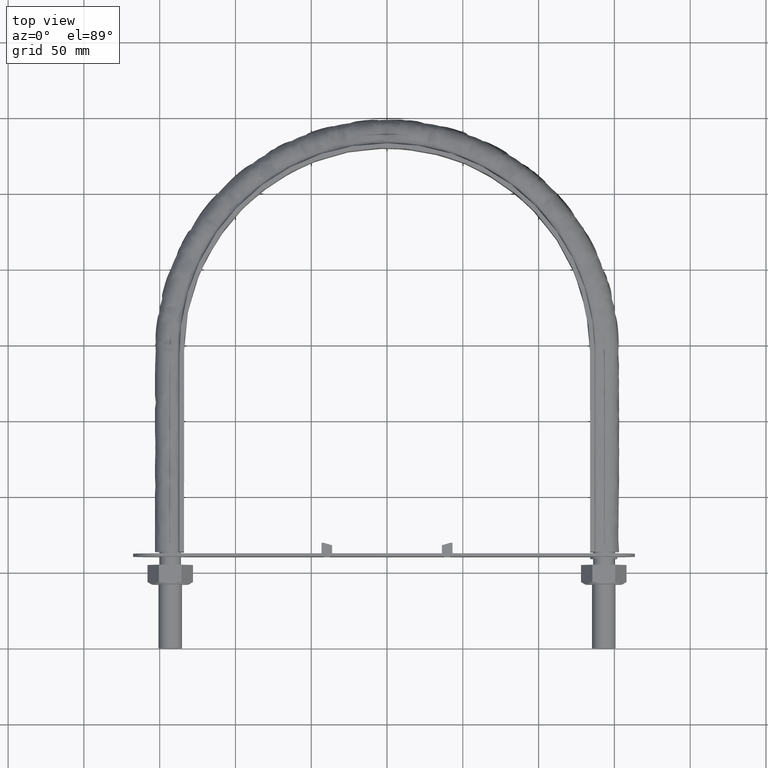
[diagram: clean part render]
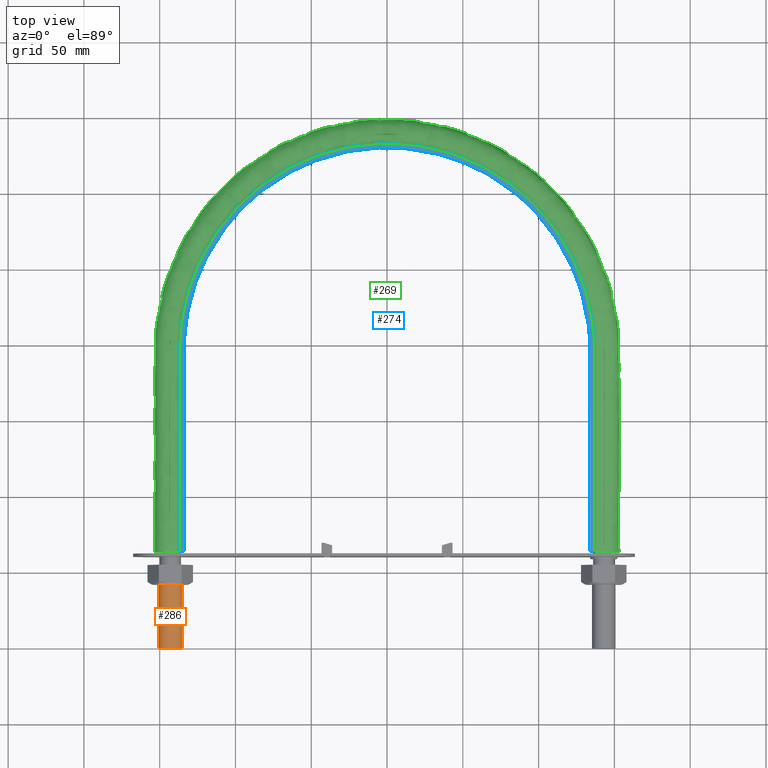
[diagram: same view with three faces highlighted in distinct colors, each labeled with its STEP entity id]
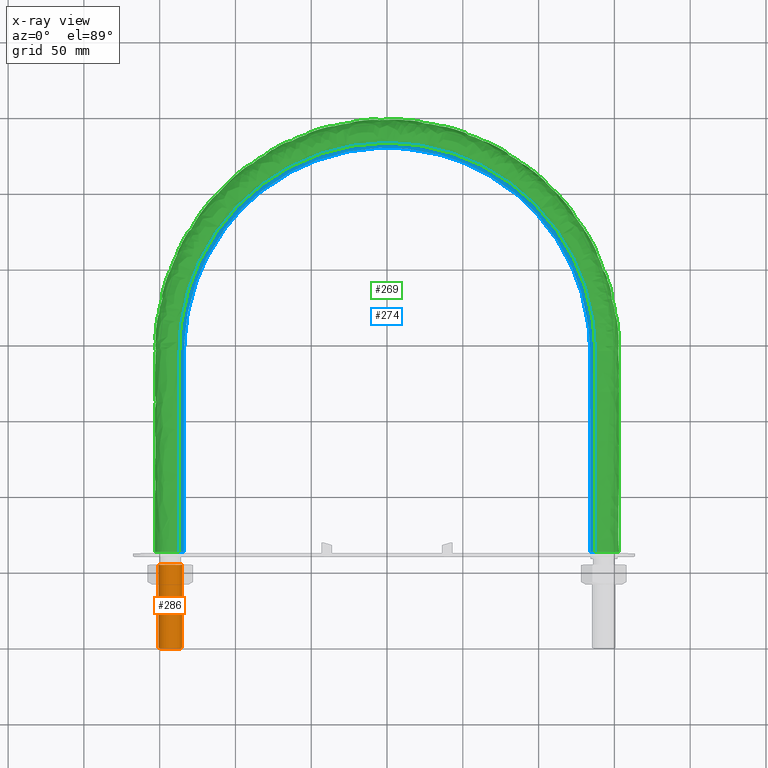
[diagram: x-ray of the same camera — body ghosted, the three highlighted faces saturated]
A machine part, top view with three faces highlighted in distinct colors.
The next image is the same camera in x-ray (body ghosted, the three faces saturated) — at least one of them is partly hidden behind the body in this view.
Their STEP definitions:

[orange] entity #286 — the highlighted cylindrical surface (bore or boss wall) has radius 7.75 mm, axis along (0, 1, -0).
#286 = ADVANCED_FACE( '', ( #407, #408 ), #409, .T. );
#407 = FACE_OUTER_BOUND( '', #1548, .T. );
#408 = FACE_OUTER_BOUND( '', #1549, .T. );
#409 = CYLINDRICAL_SURFACE( '', #1550, 7.75000000000001 );
#1548 = EDGE_LOOP( '', ( #2059 ) );
#1549 = EDGE_LOOP( '', ( #2060 ) );
#1550 = AXIS2_PLACEMENT_3D( '', #2061, #2062, #2063 );
#2059 = ORIENTED_EDGE( '', *, *, #2639, .T. );
#2060 = ORIENTED_EDGE( '', *, *, #2640, .F. );
#2061 = CARTESIAN_POINT( '', ( -143.000000000000, 55.0000000000001, -1.68383373650577E-014 ) );
#2062 = DIRECTION( '', ( 2.44921270764475E-016, 1.00000000000000, -3.06151588455594E-016 ) );
#2063 = DIRECTION( '', ( 1.00000000000000, -2.44921270764476E-016, -5.47382212626882E-048 ) );
#2639 = EDGE_CURVE( '', #2864, #2864, #2865, .T. );
#2640 = EDGE_CURVE( '', #2866, #2866, #2867, .T. );
#2864 = VERTEX_POINT( '', #3678 );
#2865 = CIRCLE( '', #3679, 7.75000000000001 );
#2866 = VERTEX_POINT( '', #3680 );
#2867 = CIRCLE( '', #3681, 7.75000000000001 );
#3678 = CARTESIAN_POINT( '', ( -135.250000000000, 55.0000000000001, -1.68383373650577E-014 ) );
#3679 = AXIS2_PLACEMENT_3D( '', #4207, #4208, #4209 );
#3680 = CARTESIAN_POINT( '', ( -135.250000000000, 7.11248822424931E-014, 0.000000000000000 ) );
#3681 = AXIS2_PLACEMENT_3D( '', #4210, #4211, #4212 );
#4207 = CARTESIAN_POINT( '', ( -143.000000000000, 55.0000000000001, -1.68383373650577E-014 ) );
#4208 = DIRECTION( '', ( -2.44921270764475E-016, -1.00000000000000, 3.06151588455594E-016 ) );
#4209 = DIRECTION( '', ( 1.00000000000000, -2.44921270764476E-016, -5.47382212626882E-048 ) );
#4210 = CARTESIAN_POINT( '', ( -143.000000000000, 7.30230220909178E-014, 4.24221214785834E-047 ) );
#4211 = DIRECTION( '', ( -2.44921270764475E-016, -1.00000000000000, 3.06151588455594E-016 ) );
#4212 = DIRECTION( '', ( 1.00000000000000, -2.44921270764476E-016, -5.47382212626882E-048 ) );

[blue] entity #274 — the highlighted planar face has unit normal (0, 0, 1).
#274 = ADVANCED_FACE( '', ( #379 ), #380, .T. );
#379 = FACE_OUTER_BOUND( '', #1148, .T. );
#380 = PLANE( '', #1149 );
#1148 = EDGE_LOOP( '', ( #1976, #1977, #1978, #1979 ) );
#1149 = AXIS2_PLACEMENT_3D( '', #1980, #1981, #1982 );
#1976 = ORIENTED_EDGE( '', *, *, #2596, .T. );
#1977 = ORIENTED_EDGE( '', *, *, #2599, .T. );
#1978 = ORIENTED_EDGE( '', *, *, #2603, .T. );
#1979 = ORIENTED_EDGE( '', *, *, #2586, .F. );
#1980 = CARTESIAN_POINT( '', ( 200.000000000000, 463.500000000000, 20.0000000000000 ) );
#1981 = DIRECTION( '', ( 0.000000000000000, 0.000000000000000, 1.00000000000000 ) );
#1982 = DIRECTION( '', ( 1.22460635382238E-016, 1.00000000000000, 0.000000000000000 ) );
#2586 = EDGE_CURVE( '', #2779, #2781, #2782, .T. );
#2596 = EDGE_CURVE( '', #2779, #2797, #2799, .T. );
#2599 = EDGE_CURVE( '', #2797, #2802, #2804, .T. );
#2603 = EDGE_CURVE( '', #2802, #2781, #2809, .T. );
#2779 = VERTEX_POINT( '', #3117 );
#2781 = VERTEX_POINT( '', #3120 );
#2782 = B_SPLINE_CURVE_WITH_KNOTS( '', 3, ( #3121, #3122, #3123, #3124, #3125, #3126, #3127, #3128, #3129, #3130, #3131, #3132, #3133, #3134, #3135, #3136, #3137, #3138, #3139, #3140, #3141, #3142, #3143, #3144, #3145, #3146, #3147, #3148, #3149, #3150, #3151, #3152, #3153, #3154, #3155, #3156, #3157, #3158, #3159, #3160, #3161, #3162, #3163, #3164, #3165, #3166, #3167, #3168, #3169, #3170, #3171, #3172, #3173, #3174, #3175, #3176, #3177, #3178, #3179, #3180, #3181, #3182, #3183, #3184, #3185, #3186, #3187, #3188, #3189, #3190, #3191, #3192, #3193, #3194, #3195, #3196, #3197, #3198, #3199, #3200, #3201, #3202, #3203, #3204, #3205, #3206, #3207, #3208, #3209, #3210, #3211, #3212, #3213, #3214, #3215, #3216, #3217, #3218, #3219, #3220, #3221, #3222, #3223, #3224, #3225, #3226, #3227 ), .UNSPECIFIED., .F., .F., ( 4, 1, 2, 2, 2, 2, 2, 2, 2, 2, 2, 2, 2, 2, 2, 2, 2, 2, 2, 2, 2, 2, 2, 2, 2, 2, 2, 2, 2, 2, 2, 2, 2, 2, 2, 1, 2, 2, 2, 2, 2, 2, 2, 2, 2, 2, 2, 2, 2, 2, 2, 2, 2, 1, 4 ), ( 1.38777878078145E-017, 0.0874256844655868, 0.131138526698380, 0.133870579337930, 0.136602631977479, 0.142066737256578, 0.152994947814776, 0.174851368931172, 0.180315474210272, 0.183047526849821, 0.185779579489371, 0.196707790047568, 0.218564211163964, 0.229492421722162, 0.232224474361712, 0.234956527001261, 0.240420632280360, 0.262277053396756, 0.273205263954954, 0.275937316594503, 0.278669369234053, 0.284133474513152, 0.305989895629548, 0.316918106187746, 0.322382211466845, 0.325114264106395, 0.327846316745944, 0.349702737862340, 0.360630948420539, 0.366095053699638, 0.368827106339187, 0.371559158978737, 0.393415580095133, 0.415272001211529, 0.418004053851078, 0.420736106490628, 0.426200211769727, 0.437128422327925, 0.458984843444321, 0.461716896083871, 0.464448948723420, 0.469913054002519, 0.480841264560717, 0.502697685677114, 0.508161790956213, 0.513625896235312, 0.524554106793510, 0.546410527909907, 0.551874633189006, 0.557338738468105, 0.562802843747204, 0.565534896386754, 0.568266949026304, 0.611979791259097, 0.699405475724684 ), .UNSPECIFIED. );
#2797 = VERTEX_POINT( '', #3515 );
#2799 = LINE( '', #3518, #3519 );
#2802 = VERTEX_POINT( '', #3523 );
#2804 = B_SPLINE_CURVE_WITH_KNOTS( '', 3, ( #3526, #3527, #3528, #3529, #3530, #3531, #3532, #3533, #3534, #3535, #3536, #3537, #3538, #3539, #3540, #3541, #3542 ), .UNSPECIFIED., .F., .F., ( 4, 3, 1, 1, 1, 1, 1, 1, 1, 3, 4 ), ( -10.0000000000000, -9.00000000000000, -8.00000000000000, -7.00000000000000, -6.00000000000000, -5.00000000000000, -4.00000000000000, -3.00000000000000, -2.00000000000000, -1.00000000000000, 0.000000000000000 ), .UNSPECIFIED. );
#2809 = LINE( '', #3574, #3575 );
#3117 = CARTESIAN_POINT( '', ( -136.950000000000, 63.5000000000001, 20.0000000000000 ) );
#3120 = CARTESIAN_POINT( '', ( 136.950000000000, 63.5000000000000, 20.0000000000000 ) );
#3121 = CARTESIAN_POINT( '', ( -136.950000000000, 63.5000000000001, 20.0000000000000 ) );
#3122 = CARTESIAN_POINT( '', ( -136.950000000000, 92.6419002480980, 20.0000000000000 ) );
#3123 = CARTESIAN_POINT( '', ( -136.950000000000, 136.354750620245, 20.0000000000000 ) );
#3124 = CARTESIAN_POINT( '', ( -136.950000000000, 180.067600992392, 20.0000000000000 ) );
#3125 = CARTESIAN_POINT( '', ( -136.950000000000, 195.549235499193, 20.0000000000000 ) );
#3126 = CARTESIAN_POINT( '', ( -136.952005766823, 196.459921105959, 20.0000000000000 ) );
#3127 = CARTESIAN_POINT( '', ( -136.934979206279, 198.281279481062, 20.0000000000000 ) );
#3128 = CARTESIAN_POINT( '', ( -136.916553871832, 199.191952619815, 20.0000000000000 ) );
#3129 = CARTESIAN_POINT( '', ( -136.834753701177, 201.923955849787, 20.0000000000000 ) );
#3130 = CARTESIAN_POINT( '', ( -136.743599783762, 203.741272047874, 20.0000000000000 ) );
#3131 = CARTESIAN_POINT( '', ( -136.363495553162, 209.166484778746, 20.0000000000000 ) );
#3132 = CARTESIAN_POINT( '', ( -135.967488703048, 212.753870458487, 20.0000000000000 ) );
#3133 = CARTESIAN_POINT( '', ( -134.367551969831, 223.431038801512, 20.0000000000000 ) );
#3134 = CARTESIAN_POINT( '', ( -132.750553866293, 230.435595074199, 20.0000000000000 ) );
#3135 = CARTESIAN_POINT( '', ( -130.033489035347, 239.047725779318, 20.0000000000000 ) );
#3136 = CARTESIAN_POINT( '', ( -129.454886141075, 240.762891350762, 20.0000000000000 ) );
#3137 = CARTESIAN_POINT( '', ( -128.533317502650, 243.324567410150, 20.0000000000000 ) );
#3138 = CARTESIAN_POINT( '', ( -128.217212893147, 244.176620027555, 20.0000000000000 ) );
#3139 = CARTESIAN_POINT( '', ( -127.566740219217, 245.876957051049, 20.0000000000000 ) );
#3140 = CARTESIAN_POINT( '', ( -127.232398800354, 246.725180838086, 20.0000000000000 ) );
#3141 = CARTESIAN_POINT( '', ( -125.522807242115, 250.937555990544, 20.0000000000000 ) );
#3142 = CARTESIAN_POINT( '', ( -124.027890382198, 254.231015655093, 20.0000000000000 ) );
#3143 = CARTESIAN_POINT( '', ( -119.177772488661, 263.891903517815, 20.0000000000000 ) );
#3144 = CARTESIAN_POINT( '', ( -115.456951462214, 270.039688790403, 20.0000000000000 ) );
#3145 = CARTESIAN_POINT( '', ( -109.152951019669, 278.827169774980, 20.0000000000000 ) );
#3146 = CARTESIAN_POINT( '', ( -106.930050833051, 281.683299996960, 20.0000000000000 ) );
#3147 = CARTESIAN_POINT( '', ( -103.994442146732, 285.159156375520, 20.0000000000000 ) );
#3148 = CARTESIAN_POINT( '', ( -103.399206220779, 285.849830869778, 20.0000000000000 ) );
#3149 = CARTESIAN_POINT( '', ( -102.198265091274, 287.215468669278, 20.0000000000000 ) );
#3150 = CARTESIAN_POINT( '', ( -101.591920700928, 287.891203542521, 20.0000000000000 ) );
#3151 = CARTESIAN_POINT( '', ( -99.7553846231876, 289.897299082132, 20.0000000000000 ) );
#3152 = CARTESIAN_POINT( '', ( -98.5077032633105, 291.206566629289, 20.0000000000000 ) );
#3153 = CARTESIAN_POINT( '', ( -92.1539858602966, 297.613835991371, 20.0000000000000 ) );
#3154 = CARTESIAN_POINT( '', ( -86.7024715106576, 302.295179626361, 20.0000000000000 ) );
#3155 = CARTESIAN_POINT( '', ( -77.9891669345026, 308.670721620165, 20.0000000000000 ) );
#3156 = CARTESIAN_POINT( '', ( -74.9946413234021, 310.687249879651, 20.0000000000000 ) );
#3157 = CARTESIAN_POINT( '', ( -71.1363767592667, 313.069086719335, 20.0000000000000 ) );
#3158 = CARTESIAN_POINT( '', ( -70.3589796436306, 313.538526390098, 20.0000000000000 ) );
#3159 = CARTESIAN_POINT( '', ( -68.7925101038781, 314.463324926288, 20.0000000000000 ) );
#3160 = CARTESIAN_POINT( '', ( -68.0028416365620, 314.918994503192, 20.0000000000000 ) );
#3161 = CARTESIAN_POINT( '', ( -65.6265150792858, 316.258978990775, 20.0000000000000 ) );
#3162 = CARTESIAN_POINT( '', ( -64.0295971988696, 317.118030590872, 20.0000000000000 ) );
#3163 = CARTESIAN_POINT( '', ( -55.9824089667635, 321.244365806941, 20.0000000000000 ) );
#3164 = CARTESIAN_POINT( '', ( -49.3439512001488, 324.003826159950, 20.0000000000000 ) );
#3165 = CARTESIAN_POINT( '', ( -39.0910082444929, 327.346268295591, 20.0000000000000 ) );
#3166 = CARTESIAN_POINT( '', ( -35.6241551653234, 328.327634953127, 20.0000000000000 ) );
#3167 = CARTESIAN_POINT( '', ( -30.3492784457169, 329.598384851550, 20.0000000000000 ) );
#3168 = CARTESIAN_POINT( '', ( -28.5785337099316, 329.988365122305, 20.0000000000000 ) );
#3169 = CARTESIAN_POINT( '', ( -25.9034309357542, 330.522102744638, 20.0000000000000 ) );
#3170 = CARTESIAN_POINT( '', ( -25.0077107435989, 330.691611247169, 20.0000000000000 ) );
#3171 = CARTESIAN_POINT( '', ( -23.2172138820030, 331.012112274078, 20.0000000000000 ) );
#3172 = CARTESIAN_POINT( '', ( -22.3218036874156, 331.163270419116, 20.0000000000000 ) );
#3173 = CARTESIAN_POINT( '', ( -14.2616746941621, 332.442909678169, 20.0000000000000 ) );
#3174 = CARTESIAN_POINT( '', ( -7.08688203430954, 333.005162357812, 20.0000000000000 ) );
#3175 = CARTESIAN_POINT( '', ( 3.69045053045426, 332.997356057590, 20.0000000000000 ) );
#3176 = CARTESIAN_POINT( '', ( 7.28543714269529, 332.851850186393, 20.0000000000000 ) );
#3177 = CARTESIAN_POINT( '', ( 12.6817359396795, 332.418941046074, 20.0000000000000 ) );
#3178 = CARTESIAN_POINT( '', ( 14.4811397915409, 332.238800753868, 20.0000000000000 ) );
#3179 = CARTESIAN_POINT( '', ( 17.1812121944269, 331.914258555030, 20.0000000000000 ) );
#3180 = CARTESIAN_POINT( '', ( 18.0813968219246, 331.797056870436, 20.0000000000000 ) );
#3181 = CARTESIAN_POINT( '', ( 19.8820902819509, 331.544430686408, 20.0000000000000 ) );
#3182 = CARTESIAN_POINT( '', ( 20.7835449490457, 331.408813108140, 20.0000000000000 ) );
#3183 = CARTESIAN_POINT( '', ( 28.8670965883866, 330.111328549363, 20.0000000000000 ) );
#3184 = CARTESIAN_POINT( '', ( 35.8703135521025, 328.406800400230, 20.0000000000000 ) );
#3185 = CARTESIAN_POINT( '', ( 49.5251538415591, 323.933849723642, 20.0000000000000 ) );
#3186 = CARTESIAN_POINT( '', ( 56.1748232267883, 321.159514727640, 20.0000000000000 ) );
#3187 = CARTESIAN_POINT( '', ( 63.4492399728131, 317.413652350477, 20.0000000000000 ) );
#3188 = CARTESIAN_POINT( '', ( 64.2555412528554, 316.988297906809, 20.0000000000000 ) );
#3189 = CARTESIAN_POINT( '', ( 65.8566175141681, 316.123190874314, 20.0000000000000 ) );
#3190 = CARTESIAN_POINT( '', ( 68.2414579243040, 314.803750954358, 20.0000000000000 ) );
#3191 = CARTESIAN_POINT( '', ( 70.5763589403795, 313.419469626308, 20.0000000000000 ) );
#3192 = CARTESIAN_POINT( '', ( 75.1805857318972, 310.565763947974, 20.0000000000000 ) );
#3193 = CARTESIAN_POINT( '', ( 78.1627035340853, 308.549856366448, 20.0000000000000 ) );
#3194 = CARTESIAN_POINT( '', ( 86.8543207620435, 302.171383663364, 20.0000000000000 ) );
#3195 = CARTESIAN_POINT( '', ( 92.3077229888417, 297.476301431762, 20.0000000000000 ) );
#3196 = CARTESIAN_POINT( '', ( 98.0418417248438, 291.673728261723, 20.0000000000000 ) );
#3197 = CARTESIAN_POINT( '', ( 98.6733697505320, 291.021731690660, 20.0000000000000 ) );
#3198 = CARTESIAN_POINT( '', ( 99.9251833237788, 289.703141292676, 20.0000000000000 ) );
#3199 = CARTESIAN_POINT( '', ( 100.546136743139, 289.035752086234, 20.0000000000000 ) );
#3200 = CARTESIAN_POINT( '', ( 102.386046552860, 287.018007311465, 20.0000000000000 ) );
#3201 = CARTESIAN_POINT( '', ( 103.581668710418, 285.652670943035, 20.0000000000000 ) );
#3202 = CARTESIAN_POINT( '', ( 107.077810366198, 281.497593093915, 20.0000000000000 ) );
#3203 = CARTESIAN_POINT( '', ( 109.287409665406, 278.648655660806, 20.0000000000000 ) );
#3204 = CARTESIAN_POINT( '', ( 115.563663674954, 269.872310524424, 20.0000000000000 ) );
#3205 = CARTESIAN_POINT( '', ( 119.278439319531, 263.715802833902, 20.0000000000000 ) );
#3206 = CARTESIAN_POINT( '', ( 123.322162064000, 255.629687512515, 20.0000000000000 ) );
#3207 = CARTESIAN_POINT( '', ( 124.100657851931, 253.992770208298, 20.0000000000000 ) );
#3208 = CARTESIAN_POINT( '', ( 125.595826737252, 250.678684334606, 20.0000000000000 ) );
#3209 = CARTESIAN_POINT( '', ( 126.312684101757, 249.000403133008, 20.0000000000000 ) );
#3210 = CARTESIAN_POINT( '', ( 128.350441665648, 243.950404789000, 20.0000000000000 ) );
#3211 = CARTESIAN_POINT( '', ( 129.565681668818, 240.548771227831, 20.0000000000000 ) );
#3212 = CARTESIAN_POINT( '', ( 132.799201309554, 230.243261059042, 20.0000000000000 ) );
#3213 = CARTESIAN_POINT( '', ( 134.406489655849, 223.239070076659, 20.0000000000000 ) );
#3214 = CARTESIAN_POINT( '', ( 135.730368078419, 214.316580552517, 20.0000000000000 ) );
#3215 = CARTESIAN_POINT( '', ( 135.960596827439, 212.523650463583, 20.0000000000000 ) );
#3216 = CARTESIAN_POINT( '', ( 136.350715609652, 208.920622076923, 20.0000000000000 ) );
#3217 = CARTESIAN_POINT( '', ( 136.510773884774, 207.109390090212, 20.0000000000000 ) );
#3218 = CARTESIAN_POINT( '', ( 136.758613068843, 203.474281669827, 20.0000000000000 ) );
#3219 = CARTESIAN_POINT( '', ( 136.846031799769, 201.656639207714, 20.0000000000000 ) );
#3220 = CARTESIAN_POINT( '', ( 136.922369077726, 198.930043041096, 20.0000000000000 ) );
#3221 = CARTESIAN_POINT( '', ( 136.939052762000, 198.021156467244, 20.0000000000000 ) );
#3222 = CARTESIAN_POINT( '', ( 136.951967908155, 196.203333870081, 20.0000000000000 ) );
#3223 = CARTESIAN_POINT( '', ( 136.950000000000, 195.294402200339, 20.0000000000000 ) );
#3224 = CARTESIAN_POINT( '', ( 136.950000000000, 179.842644700989, 20.0000000000000 ) );
#3225 = CARTESIAN_POINT( '', ( 136.950000000000, 136.214152938118, 20.0000000000000 ) );
#3226 = CARTESIAN_POINT( '', ( 136.950000000000, 92.5856611752474, 20.0000000000000 ) );
#3227 = CARTESIAN_POINT( '', ( 136.950000000000, 63.5000000000000, 20.0000000000000 ) );
#3515 = CARTESIAN_POINT( '', ( -133.950000000000, 63.5000000000001, 20.0000000000000 ) );
#3518 = CARTESIAN_POINT( '', ( -200.000000000000, 63.5000000000001, 20.0000000000000 ) );
#3519 = VECTOR( '', #4145, 1000.00000000000 );
#3523 = CARTESIAN_POINT( '', ( 133.950000000000, 63.5000000000001, 20.0000000000000 ) );
#3526 = CARTESIAN_POINT( '', ( -133.950000000000, 63.5000000000001, 20.0000000000001 ) );
#3527 = CARTESIAN_POINT( '', ( -133.950000000000, 107.683333333333, 20.0000000000001 ) );
#3528 = CARTESIAN_POINT( '', ( -133.950000000000, 151.866666666667, 20.0000000000001 ) );
#3529 = CARTESIAN_POINT( '', ( -133.950000000000, 196.050000000000, 20.0000000000001 ) );
#3530 = CARTESIAN_POINT( '', ( -133.950000000000, 213.566032700257, 20.0000000000001 ) );
#3531 = CARTESIAN_POINT( '', ( -126.975474198415, 248.652216480459, 20.0000000000001 ) );
#3532 = CARTESIAN_POINT( '', ( -97.1828205848687, 293.230867859828, 20.0000000000001 ) );
#3533 = CARTESIAN_POINT( '', ( -52.5949635017385, 323.026032119855, 20.0000000000001 ) );
#3534 = CARTESIAN_POINT( '', ( 9.63501791762652E-014, 333.486983940073, 20.0000000000001 ) );
#3535 = CARTESIAN_POINT( '', ( 52.5949635017385, 323.026032119855, 20.0000000000001 ) );
#3536 = CARTESIAN_POINT( '', ( 97.1828205848688, 293.230867859828, 20.0000000000001 ) );
#3537 = CARTESIAN_POINT( '', ( 126.975474198415, 248.652216480460, 20.0000000000001 ) );
#3538 = CARTESIAN_POINT( '', ( 133.950000000000, 213.566032700257, 20.0000000000001 ) );
#3539 = CARTESIAN_POINT( '', ( 133.950000000000, 196.050000000000, 20.0000000000001 ) );
#3540 = CARTESIAN_POINT( '', ( 133.950000000000, 151.866666666667, 20.0000000000001 ) );
#3541 = CARTESIAN_POINT( '', ( 133.950000000000, 107.683333333333, 20.0000000000001 ) );
#3542 = CARTESIAN_POINT( '', ( 133.950000000000, 63.5000000000000, 20.0000000000001 ) );
#3574 = CARTESIAN_POINT( '', ( -200.000000000000, 63.5000000000001, 20.0000000000000 ) );
#3575 = VECTOR( '', #4149, 1000.00000000000 );
#4145 = DIRECTION( '', ( 1.00000000000000, -1.22460635382238E-016, 0.000000000000000 ) );
#4149 = DIRECTION( '', ( 1.00000000000000, -1.22460635382238E-016, 0.000000000000000 ) );

[green] entity #269 — the highlighted face is a freeform B-spline surface patch.
#269 = ADVANCED_FACE( '', ( #367 ), #368, .F. );
#367 = FACE_OUTER_BOUND( '', #592, .T. );
#368 = B_SPLINE_SURFACE_WITH_KNOTS( '', 3, 3, ( ( #593, #594, #595, #596, #597, #598, #599, #600, #601, #602, #603, #604, #605, #606, #607, #608, #609 ), ( #610, #611, #612, #613, #614, #615, #616, #617, #618, #619, #620, #621, #622, #623, #624, #625, #626 ), ( #627, #628, #629, #630, #631, #632, #633, #634, #635, #636, #637, #638, #639, #640, #641, #642, #643 ), ( #644, #645, #646, #647, #648, #649, #650, #651, #652, #653, #654, #655, #656, #657, #658, #659, #660 ), ( #661, #662, #663, #664, #665, #666, #667, #668, #669, #670, #671, #672, #673, #674, #675, #676, #677 ), ( #678, #679, #680, #681, #682, #683, #684, #685, #686, #687, #688, #689, #690, #691, #692, #693, #694 ), ( #695, #696, #697, #698, #699, #700, #701, #702, #703, #704, #705, #706, #707, #708, #709, #710, #711 ), ( #712, #713, #714, #715, #716, #717, #718, #719, #720, #721, #722, #723, #724, #725, #726, #727, #728 ), ( #729, #730, #731, #732, #733, #734, #735, #736, #737, #738, #739, #740, #741, #742, #743, #744, #745 ), ( #746, #747, #748, #749, #750, #751, #752, #753, #754, #755, #756, #757, #758, #759, #760, #761, #762 ), ( #763, #764, #765, #766, #767, #768, #769, #770, #771, #772, #773, #774, #775, #776, #777, #778, #779 ), ( #780, #781, #782, #783, #784, #785, #786, #787, #788, #789, #790, #791, #792, #793, #794, #795, #796 ), ( #797, #798, #799, #800, #801, #802, #803, #804, #805, #806, #807, #808, #809, #810, #811, #812, #813 ), ( #814, #815, #816, #817, #818, #819, #820, #821, #822, #823, #824, #825, #826, #827, #828, #829, #830 ), ( #831, #832, #833, #834, #835, #836, #837, #838, #839, #840, #841, #842, #843, #844, #845, #846, #847 ), ( #848, #849, #850, #851, #852, #853, #854, #855, #856, #857, #858, #859, #860, #861, #862, #863, #864 ), ( #865, #866, #867, #868, #869, #870, #871, #872, #873, #874, #875, #876, #877, #878, #879, #880, #881 ), ( #882, #883, #884, #885, #886, #887, #888, #889, #890, #891, #892, #893, #894, #895, #896, #897, #898 ), ( #899, #900, #901, #902, #903, #904, #905, #906, #907, #908, #909, #910, #911, #912, #913, #914, #915 ), ( #916, #917, #918, #919, #920, #921, #922, #923, #924, #925, #926, #927, #928, #929, #930, #931, #932 ), ( #933, #934, #935, #936, #937, #938, #939, #940, #941, #942, #943, #944, #945, #946, #947, #948, #949 ), ( #950, #951, #952, #953, #954, #955, #956, #957, #958, #959, #960, #961, #962, #963, #964, #965, #966 ), ( #967, #968, #969, #970, #971, #972, #973, #974, #975, #976, #977, #978, #979, #980, #981, #982, #983 ), ( #984, #985, #986, #987, #988, #989, #990, #991, #992, #993, #994, #995, #996, #997, #998, #999, #1000 ), ( #1001, #1002, #1003, #1004, #1005, #1006, #1007, #1008, #1009, #1010, #1011, #1012, #1013, #1014, #1015, #1016, #1017 ), ( #1018, #1019, #1020, #1021, #1022, #1023, #1024, #1025, #1026, #1027, #1028, #1029, #1030, #1031, #1032, #1033, #1034 ), ( #1035, #1036, #1037, #1038, #1039, #1040, #1041, #1042, #1043, #1044, #1045, #1046, #1047, #1048, #1049, #1050, #1051 ), ( #1052, #1053, #1054, #1055, #1056, #1057, #1058, #1059, #1060, #1061, #1062, #1063, #1064, #1065, #1066, #1067, #1068 ), ( #1069, #1070, #1071, #1072, #1073, #1074, #1075, #1076, #1077, #1078, #1079, #1080, #1081, #1082, #1083, #1084, #1085 ), ( #1086, #1087, #1088, #1089, #1090, #1091, #1092, #1093, #1094, #1095, #1096, #1097, #1098, #1099, #1100, #1101, #1102 ), ( #1103, #1104, #1105, #1106, #1107, #1108, #1109, #1110, #1111, #1112, #1113, #1114, #1115, #1116, #1117, #1118, #1119 ), ( #1120, #1121, #1122, #1123, #1124, #1125, #1126, #1127, #1128, #1129, #1130, #1131, #1132, #1133, #1134, #1135, #1136 ) ), .UNSPECIFIED., .F., .F., .F., ( 4, 3, 1, 1, 1, 3, 3, 1, 1, 1, 1, 3, 3, 1, 1, 1, 3, 4 ), ( 4, 3, 1, 1, 1, 1, 1, 1, 1, 3, 4 ), ( 0.100000000000000, 0.150000000000000, 0.200000000000000, 0.250000000000000, 0.300000000000000, 0.350000000000000, 0.400000000000000, 0.450000000000000, 0.500000000000000, 0.550000000000000, 0.600000000000000, 0.650000000000000, 0.700000000000000, 0.750000000000000, 0.800000000000000, 0.850000000000000, 0.900000000000000, 0.950000000000000 ), ( 0.000000000000000, 1.00000000000000, 2.00000000000000, 3.00000000000000, 4.00000000000000, 5.00000000000000, 6.00000000000000, 7.00000000000000, 8.00000000000000, 9.00000000000000, 10.0000000000000 ), .UNSPECIFIED. );
#592 = EDGE_LOOP( '', ( #1923, #1924, #1925, #1926 ) );
#593 = CARTESIAN_POINT( '', ( 136.950000000000, 63.5000000000000, -20.0000000000000 ) );
#594 = CARTESIAN_POINT( '', ( 136.950000000000, 107.683333333333, -20.0000000000000 ) );
#595 = CARTESIAN_POINT( '', ( 136.950000000000, 151.866666666667, -20.0000000000000 ) );
#596 = CARTESIAN_POINT( '', ( 136.950000000000, 196.050000000000, -20.0000000000000 ) );
#597 = CARTESIAN_POINT( '', ( 136.950000000000, 213.963857435017, -20.0000000000000 ) );
#598 = CARTESIAN_POINT( '', ( 129.819269813161, 249.827750890366, -20.0000000000000 ) );
#599 = CARTESIAN_POINT( '', ( 99.3593675184605, 295.408062105588, -20.0000000000001 ) );
#600 = CARTESIAN_POINT( '', ( 53.7729022139835, 325.869642788268, -20.0000000000000 ) );
#601 = CARTESIAN_POINT( '', ( 1.19278542038567E-013, 336.565178605866, -20.0000000000000 ) );
#602 = CARTESIAN_POINT( '', ( -53.7729022139834, 325.869642788267, -20.0000000000000 ) );
#603 = CARTESIAN_POINT( '', ( -99.3593675184604, 295.408062105588, -20.0000000000000 ) );
#604 = CARTESIAN_POINT( '', ( -129.819269813161, 249.827750890366, -20.0000000000000 ) );
#605 = CARTESIAN_POINT( '', ( -136.950000000000, 213.963857435017, -20.0000000000000 ) );
#606 = CARTESIAN_POINT( '', ( -136.950000000000, 196.050000000000, -20.0000000000000 ) );
#607 = CARTESIAN_POINT( '', ( -136.950000000000, 151.866666666667, -20.0000000000000 ) );
#608 = CARTESIAN_POINT( '', ( -136.950000000000, 107.683333333333, -20.0000000000000 ) );
#609 = CARTESIAN_POINT( '', ( -136.950000000000, 63.5000000000001, -20.0000000000000 ) );
#610 = CARTESIAN_POINT( '', ( 136.950000000000, 63.5000000000000, -17.3666666666667 ) );
#611 = CARTESIAN_POINT( '', ( 136.950000000000, 107.683333333333, -17.3666666666667 ) );
#612 = CARTESIAN_POINT( '', ( 136.950000000000, 151.866666666667, -17.3666666666667 ) );
#613 = CARTESIAN_POINT( '', ( 136.950000000000, 196.050000000000, -17.3666666666667 ) );
#614 = CARTESIAN_POINT( '', ( 136.950000000000, 213.963857435017, -17.3666666666667 ) );
#615 = CARTESIAN_POINT( '', ( 129.819269813161, 249.827750890366, -17.3666666666667 ) );
#616 = CARTESIAN_POINT( '', ( 99.3593675184605, 295.408062105588, -17.3666666666667 ) );
#617 = CARTESIAN_POINT( '', ( 53.7729022139835, 325.869642788268, -17.3666666666667 ) );
#618 = CARTESIAN_POINT( '', ( 1.10604924658683E-013, 336.565178605866, -17.3666666666667 ) );
#619 = CARTESIAN_POINT( '', ( -53.7729022139834, 325.869642788267, -17.3666666666667 ) );
#620 = CARTESIAN_POINT( '', ( -99.3593675184604, 295.408062105588, -17.3666666666667 ) );
#621 = CARTESIAN_POINT( '', ( -129.819269813161, 249.827750890366, -17.3666666666667 ) );
#622 = CARTESIAN_POINT( '', ( -136.950000000000, 213.963857435017, -17.3666666666667 ) );
#623 = CARTESIAN_POINT( '', ( -136.950000000000, 196.050000000000, -17.3666666666667 ) );
#624 = CARTESIAN_POINT( '', ( -136.950000000000, 151.866666666667, -17.3666666666667 ) );
#625 = CARTESIAN_POINT( '', ( -136.950000000000, 107.683333333333, -17.3666666666667 ) );
#626 = CARTESIAN_POINT( '', ( -136.950000000000, 63.5000000000001, -17.3666666666667 ) );
#627 = CARTESIAN_POINT( '', ( 136.950000000000, 63.5000000000000, -14.7333333333333 ) );
#628 = CARTESIAN_POINT( '', ( 136.950000000000, 107.683333333333, -14.7333333333333 ) );
#629 = CARTESIAN_POINT( '', ( 136.950000000000, 151.866666666667, -14.7333333333333 ) );
#630 = CARTESIAN_POINT( '', ( 136.950000000000, 196.050000000000, -14.7333333333333 ) );
#631 = CARTESIAN_POINT( '', ( 136.950000000000, 213.963857435017, -14.7333333333333 ) );
#632 = CARTESIAN_POINT( '', ( 129.819269813161, 249.827750890366, -14.7333333333333 ) );
#633 = CARTESIAN_POINT( '', ( 99.3593675184605, 295.408062105588, -14.7333333333334 ) );
#634 = CARTESIAN_POINT( '', ( 53.7729022139835, 325.869642788268, -14.7333333333333 ) );
#635 = CARTESIAN_POINT( '', ( 1.01931307278799E-013, 336.565178605866, -14.7333333333333 ) );
#636 = CARTESIAN_POINT( '', ( -53.7729022139834, 325.869642788267, -14.7333333333333 ) );
#637 = CARTESIAN_POINT( '', ( -99.3593675184604, 295.408062105588, -14.7333333333333 ) );
#638 = CARTESIAN_POINT( '', ( -129.819269813161, 249.827750890366, -14.7333333333333 ) );
#639 = CARTESIAN_POINT( '', ( -136.950000000000, 213.963857435017, -14.7333333333333 ) );
#640 = CARTESIAN_POINT( '', ( -136.950000000000, 196.050000000000, -14.7333333333333 ) );
#641 = CARTESIAN_POINT( '', ( -136.950000000000, 151.866666666667, -14.7333333333333 ) );
#642 = CARTESIAN_POINT( '', ( -136.950000000000, 107.683333333333, -14.7333333333333 ) );
#643 = CARTESIAN_POINT( '', ( -136.950000000000, 63.5000000000001, -14.7333333333333 ) );
#644 = CARTESIAN_POINT( '', ( 136.950000000000, 63.5000000000000, -12.1000000000000 ) );
#645 = CARTESIAN_POINT( '', ( 136.950000000000, 107.683333333333, -12.1000000000000 ) );
#646 = CARTESIAN_POINT( '', ( 136.950000000000, 151.866666666667, -12.1000000000000 ) );
#647 = CARTESIAN_POINT( '', ( 136.950000000000, 196.050000000000, -12.1000000000000 ) );
#648 = CARTESIAN_POINT( '', ( 136.950000000000, 213.963857435017, -12.1000000000000 ) );
#649 = CARTESIAN_POINT( '', ( 129.819269813161, 249.827750890366, -12.1000000000000 ) );
#650 = CARTESIAN_POINT( '', ( 99.3593675184605, 295.408062105588, -12.1000000000000 ) );
#651 = CARTESIAN_POINT( '', ( 53.7729022139835, 325.869642788268, -12.1000000000000 ) );
#652 = CARTESIAN_POINT( '', ( 9.15229664229381E-014, 336.565178605866, -12.1000000000000 ) );
#653 = CARTESIAN_POINT( '', ( -53.7729022139834, 325.869642788267, -12.1000000000000 ) );
#654 = CARTESIAN_POINT( '', ( -99.3593675184604, 295.408062105588, -12.1000000000000 ) );
#655 = CARTESIAN_POINT( '', ( -129.819269813161, 249.827750890366, -12.1000000000000 ) );
#656 = CARTESIAN_POINT( '', ( -136.950000000000, 213.963857435017, -12.1000000000000 ) );
#657 = CARTESIAN_POINT( '', ( -136.950000000000, 196.050000000000, -12.1000000000000 ) );
#658 = CARTESIAN_POINT( '', ( -136.950000000000, 151.866666666667, -12.1000000000000 ) );
#659 = CARTESIAN_POINT( '', ( -136.950000000000, 107.683333333333, -12.1000000000000 ) );
#660 = CARTESIAN_POINT( '', ( -136.950000000000, 63.5000000000001, -12.1000000000000 ) );
#661 = CARTESIAN_POINT( '', ( 136.950000000000, 63.5000000000000, -11.8382358417233 ) );
#662 = CARTESIAN_POINT( '', ( 136.950000000000, 107.683333333333, -11.8382358417233 ) );
#663 = CARTESIAN_POINT( '', ( 136.950000000000, 151.866666666667, -11.8382358417233 ) );
#664 = CARTESIAN_POINT( '', ( 136.950000000000, 196.050000000000, -11.8382358417233 ) );
#665 = CARTESIAN_POINT( '', ( 136.950000000000, 213.963857435017, -11.8382358417233 ) );
#666 = CARTESIAN_POINT( '', ( 129.819269813161, 249.827750890366, -11.8382358417233 ) );
#667 = CARTESIAN_POINT( '', ( 99.3593675184605, 295.408062105588, -11.8382358417233 ) );
#668 = CARTESIAN_POINT( '', ( 53.7729022139835, 325.869642788268, -11.8382358417233 ) );
#669 = CARTESIAN_POINT( '', ( 8.97882429469613E-014, 336.565178605866, -11.8382358417233 ) );
#670 = CARTESIAN_POINT( '', ( -53.7729022139834, 325.869642788267, -11.8382358417233 ) );
#671 = CARTESIAN_POINT( '', ( -99.3593675184604, 295.408062105588, -11.8382358417233 ) );
#672 = CARTESIAN_POINT( '', ( -129.819269813161, 249.827750890366, -11.8382358417233 ) );
#673 = CARTESIAN_POINT( '', ( -136.950000000000, 213.963857435017, -11.8382358417233 ) );
#674 = CARTESIAN_POINT( '', ( -136.950000000000, 196.050000000000, -11.8382358417233 ) );
#675 = CARTESIAN_POINT( '', ( -136.950000000000, 151.866666666667, -11.8382358417233 ) );
#676 = CARTESIAN_POINT( '', ( -136.950000000000, 107.683333333333, -11.8382358417233 ) );
#677 = CARTESIAN_POINT( '', ( -136.950000000000, 63.5000000000001, -11.8382358417233 ) );
#678 = CARTESIAN_POINT( '', ( 137.054136256836, 63.5000000000000, -11.3147075251700 ) );
#679 = CARTESIAN_POINT( '', ( 137.054136256836, 107.683333333333, -11.3147075251700 ) );
#680 = CARTESIAN_POINT( '', ( 137.054136256836, 151.866666666667, -11.3147075251700 ) );
#681 = CARTESIAN_POINT( '', ( 137.054136256836, 196.050000000000, -11.3147075251700 ) );
#682 = CARTESIAN_POINT( '', ( 137.054136256836, 213.977666761268, -11.3147075251700 ) );
#683 = CARTESIAN_POINT( '', ( 129.917983890003, 249.868556141442, -11.3147075251700 ) );
#684 = CARTESIAN_POINT( '', ( 99.4349200019578, 295.483637058641, -11.3147075251700 ) );
#685 = CARTESIAN_POINT( '', ( 53.8137909234086, 325.968350445237, -11.3147075251700 ) );
#686 = CARTESIAN_POINT( '', ( 9.84749453139183E-014, 336.672029162636, -11.3147075251700 ) );
#687 = CARTESIAN_POINT( '', ( -53.8137909234086, 325.968350445236, -11.3147075251700 ) );
#688 = CARTESIAN_POINT( '', ( -99.4349200019577, 295.483637058641, -11.3147075251700 ) );
#689 = CARTESIAN_POINT( '', ( -129.917983890003, 249.868556141442, -11.3147075251700 ) );
#690 = CARTESIAN_POINT( '', ( -137.054136256836, 213.977666761268, -11.3147075251700 ) );
#691 = CARTESIAN_POINT( '', ( -137.054136256836, 196.050000000000, -11.3147075251700 ) );
#692 = CARTESIAN_POINT( '', ( -137.054136256836, 151.866666666667, -11.3147075251700 ) );
#693 = CARTESIAN_POINT( '', ( -137.054136256836, 107.683333333333, -11.3147075251700 ) );
#694 = CARTESIAN_POINT( '', ( -137.054136256836, 63.5000000000001, -11.3147075251700 ) );
#695 = CARTESIAN_POINT( '', ( 137.498968710939, 63.5000000000000, -10.6489687109389 ) );
#696 = CARTESIAN_POINT( '', ( 137.498968710939, 107.683333333333, -10.6489687109389 ) );
#697 = CARTESIAN_POINT( '', ( 137.498968710939, 151.866666666667, -10.6489687109389 ) );
#698 = CARTESIAN_POINT( '', ( 137.498968710939, 196.050000000000, -10.6489687109389 ) );
#699 = CARTESIAN_POINT( '', ( 137.498968710939, 214.036655212290, -10.6489687109389 ) );
#700 = CARTESIAN_POINT( '', ( 130.339654750761, 250.042861426923, -10.6489687109389 ) );
#701 = CARTESIAN_POINT( '', ( 99.7576529066044, 295.806465945108, -10.6489687109389 ) );
#702 = CARTESIAN_POINT( '', ( 53.9884527127922, 326.389993882618, -10.6489687109389 ) );
#703 = CARTESIAN_POINT( '', ( 9.85308396497472E-014, 337.128456125100, -10.6489687109389 ) );
#704 = CARTESIAN_POINT( '', ( -53.9884527127922, 326.389993882617, -10.6489687109389 ) );
#705 = CARTESIAN_POINT( '', ( -99.7576529066043, 295.806465945108, -10.6489687109389 ) );
#706 = CARTESIAN_POINT( '', ( -130.339654750761, 250.042861426923, -10.6489687109389 ) );
#707 = CARTESIAN_POINT( '', ( -137.498968710939, 214.036655212290, -10.6489687109389 ) );
#708 = CARTESIAN_POINT( '', ( -137.498968710939, 196.050000000000, -10.6489687109389 ) );
#709 = CARTESIAN_POINT( '', ( -137.498968710939, 151.866666666667, -10.6489687109389 ) );
#710 = CARTESIAN_POINT( '', ( -137.498968710939, 107.683333333333, -10.6489687109389 ) );
#711 = CARTESIAN_POINT( '', ( -137.498968710939, 63.5000000000001, -10.6489687109389 ) );
#712 = CARTESIAN_POINT( '', ( 138.164707525170, 63.5000000000000, -10.2041362568359 ) );
#713 = CARTESIAN_POINT( '', ( 138.164707525170, 107.683333333333, -10.2041362568359 ) );
#714 = CARTESIAN_POINT( '', ( 138.164707525170, 151.866666666667, -10.2041362568359 ) );
#715 = CARTESIAN_POINT( '', ( 138.164707525170, 196.050000000000, -10.2041362568359 ) );
#716 = CARTESIAN_POINT( '', ( 138.164707525170, 214.124937668020, -10.2041362568359 ) );
#717 = CARTESIAN_POINT( '', ( 130.970729790920, 250.303727721636, -10.2041362568359 ) );
#718 = CARTESIAN_POINT( '', ( 100.240656831500, 296.289613516949, -10.2041362568359 ) );
#719 = CARTESIAN_POINT( '', ( 54.2498525533012, 327.021027880792, -10.2041362568359 ) );
#720 = CARTESIAN_POINT( '', ( 9.34103210069187E-014, 337.811547347359, -10.2041362568359 ) );
#721 = CARTESIAN_POINT( '', ( -54.2498525533011, 327.021027880792, -10.2041362568359 ) );
#722 = CARTESIAN_POINT( '', ( -100.240656831500, 296.289613516949, -10.2041362568359 ) );
#723 = CARTESIAN_POINT( '', ( -130.970729790920, 250.303727721636, -10.2041362568359 ) );
#724 = CARTESIAN_POINT( '', ( -138.164707525170, 214.124937668020, -10.2041362568359 ) );
#725 = CARTESIAN_POINT( '', ( -138.164707525170, 196.050000000000, -10.2041362568359 ) );
#726 = CARTESIAN_POINT( '', ( -138.164707525170, 151.866666666667, -10.2041362568359 ) );
#727 = CARTESIAN_POINT( '', ( -138.164707525170, 107.683333333333, -10.2041362568359 ) );
#728 = CARTESIAN_POINT( '', ( -138.164707525170, 63.5000000000001, -10.2041362568359 ) );
#729 = CARTESIAN_POINT( '', ( 138.688235841723, 63.5000000000000, -10.1000000000000 ) );
#730 = CARTESIAN_POINT( '', ( 138.688235841723, 107.683333333333, -10.1000000000000 ) );
#731 = CARTESIAN_POINT( '', ( 138.688235841723, 151.866666666667, -10.1000000000000 ) );
#732 = CARTESIAN_POINT( '', ( 138.688235841723, 196.050000000000, -10.1000000000000 ) );
#733 = CARTESIAN_POINT( '', ( 138.688235841723, 214.194361839244, -10.1000000000000 ) );
#734 = CARTESIAN_POINT( '', ( 131.466998967857, 250.508869571859, -10.1000000000000 ) );
#735 = CARTESIAN_POINT( '', ( 100.620484815515, 296.669554463046, -10.1000000000000 ) );
#736 = CARTESIAN_POINT( '', ( 54.4554139769760, 327.517264782848, -10.1000000000000 ) );
#737 = CARTESIAN_POINT( '', ( 9.52108271551611E-014, 338.348721371161, -10.1000000000000 ) );
#738 = CARTESIAN_POINT( '', ( -54.4554139769760, 327.517264782848, -10.1000000000000 ) );
#739 = CARTESIAN_POINT( '', ( -100.620484815514, 296.669554463046, -10.1000000000000 ) );
#740 = CARTESIAN_POINT( '', ( -131.466998967857, 250.508869571859, -10.1000000000000 ) );
#741 = CARTESIAN_POINT( '', ( -138.688235841723, 214.194361839244, -10.1000000000000 ) );
#742 = CARTESIAN_POINT( '', ( -138.688235841723, 196.050000000000, -10.1000000000000 ) );
#743 = CARTESIAN_POINT( '', ( -138.688235841723, 151.866666666667, -10.1000000000000 ) );
#744 = CARTESIAN_POINT( '', ( -138.688235841723, 107.683333333333, -10.1000000000000 ) );
#745 = CARTESIAN_POINT( '', ( -138.688235841723, 63.5000000000001, -10.1000000000000 ) );
#746 = CARTESIAN_POINT( '', ( 138.950000000000, 63.5000000000000, -10.1000000000000 ) );
#747 = CARTESIAN_POINT( '', ( 138.950000000000, 107.683333333333, -10.1000000000000 ) );
#748 = CARTESIAN_POINT( '', ( 138.950000000000, 151.866666666667, -10.1000000000000 ) );
#749 = CARTESIAN_POINT( '', ( 138.950000000000, 196.050000000000, -10.1000000000000 ) );
#750 = CARTESIAN_POINT( '', ( 138.950000000000, 214.229073924856, -10.1000000000000 ) );
#751 = CARTESIAN_POINT( '', ( 131.715133556325, 250.611440496970, -10.1000000000000 ) );
#752 = CARTESIAN_POINT( '', ( 100.810398807522, 296.859524936095, -10.1000000000000 ) );
#753 = CARTESIAN_POINT( '', ( 54.5581946888135, 327.765383233876, -10.1000000000000 ) );
#754 = CARTESIAN_POINT( '', ( 9.00395480633635E-014, 338.617308383062, -10.1000000000000 ) );
#755 = CARTESIAN_POINT( '', ( -54.5581946888134, 327.765383233876, -10.1000000000000 ) );
#756 = CARTESIAN_POINT( '', ( -100.810398807522, 296.859524936095, -10.1000000000000 ) );
#757 = CARTESIAN_POINT( '', ( -131.715133556325, 250.611440496970, -10.1000000000000 ) );
#758 = CARTESIAN_POINT( '', ( -138.950000000000, 214.229073924856, -10.1000000000000 ) );
#759 = CARTESIAN_POINT( '', ( -138.950000000000, 196.050000000000, -10.1000000000000 ) );
#760 = CARTESIAN_POINT( '', ( -138.950000000000, 151.866666666667, -10.1000000000000 ) );
#761 = CARTESIAN_POINT( '', ( -138.950000000000, 107.683333333333, -10.1000000000000 ) );
#762 = CARTESIAN_POINT( '', ( -138.950000000000, 63.5000000000001, -10.1000000000000 ) );
#763 = CARTESIAN_POINT( '', ( 140.300000000000, 63.5000000000000, -10.1000000000000 ) );
#764 = CARTESIAN_POINT( '', ( 140.300000000000, 107.683333333333, -10.1000000000000 ) );
#765 = CARTESIAN_POINT( '', ( 140.300000000000, 151.866666666667, -10.1000000000000 ) );
#766 = CARTESIAN_POINT( '', ( 140.300000000000, 196.050000000000, -10.1000000000000 ) );
#767 = CARTESIAN_POINT( '', ( 140.300000000000, 214.408095055498, -10.1000000000000 ) );
#768 = CARTESIAN_POINT( '', ( 132.994841582961, 251.140430981428, -10.1000000000000 ) );
#769 = CARTESIAN_POINT( '', ( 101.789844927638, 297.839262346687, -10.1000000000000 ) );
#770 = CARTESIAN_POINT( '', ( 55.0882671093237, 329.045008034661, -10.1000000000000 ) );
#771 = CARTESIAN_POINT( '', ( 1.17964754632564E-013, 340.002495982669, -10.1000000000000 ) );
#772 = CARTESIAN_POINT( '', ( -55.0882671093237, 329.045008034661, -10.1000000000000 ) );
#773 = CARTESIAN_POINT( '', ( -101.789844927638, 297.839262346686, -10.1000000000000 ) );
#774 = CARTESIAN_POINT( '', ( -132.994841582961, 251.140430981428, -10.1000000000000 ) );
#775 = CARTESIAN_POINT( '', ( -140.300000000000, 214.408095055498, -10.1000000000000 ) );
#776 = CARTESIAN_POINT( '', ( -140.300000000000, 196.050000000000, -10.1000000000000 ) );
#777 = CARTESIAN_POINT( '', ( -140.300000000000, 151.866666666667, -10.1000000000000 ) );
#778 = CARTESIAN_POINT( '', ( -140.300000000000, 107.683333333333, -10.1000000000000 ) );
#779 = CARTESIAN_POINT( '', ( -140.300000000000, 63.5000000000001, -10.1000000000000 ) );
#780 = CARTESIAN_POINT( '', ( 141.650000000000, 63.5000000000000, -10.1000000000000 ) );
#781 = CARTESIAN_POINT( '', ( 141.650000000000, 107.683333333333, -10.1000000000000 ) );
#782 = CARTESIAN_POINT( '', ( 141.650000000000, 151.866666666667, -10.1000000000000 ) );
#783 = CARTESIAN_POINT( '', ( 141.650000000000, 196.050000000000, -10.1000000000000 ) );
#784 = CARTESIAN_POINT( '', ( 141.650000000000, 214.587116186140, -10.1000000000000 ) );
#785 = CARTESIAN_POINT( '', ( 134.274549609597, 251.669421465886, -10.1000000000000 ) );
#786 = CARTESIAN_POINT( '', ( 102.769291047754, 298.818999757278, -10.1000000000000 ) );
#787 = CARTESIAN_POINT( '', ( 55.6183395298340, 330.324632835447, -10.1000000000000 ) );
#788 = CARTESIAN_POINT( '', ( 1.14664938634182E-013, 341.387683582277, -10.1000000000000 ) );
#789 = CARTESIAN_POINT( '', ( -55.6183395298339, 330.324632835447, -10.1000000000000 ) );
#790 = CARTESIAN_POINT( '', ( -102.769291047754, 298.818999757278, -10.1000000000000 ) );
#791 = CARTESIAN_POINT( '', ( -134.274549609597, 251.669421465886, -10.1000000000000 ) );
#792 = CARTESIAN_POINT( '', ( -141.650000000000, 214.587116186140, -10.1000000000000 ) );
#793 = CARTESIAN_POINT( '', ( -141.650000000000, 196.050000000000, -10.1000000000000 ) );
#794 = CARTESIAN_POINT( '', ( -141.650000000000, 151.866666666667, -10.1000000000000 ) );
#795 = CARTESIAN_POINT( '', ( -141.650000000000, 107.683333333333, -10.1000000000000 ) );
#796 = CARTESIAN_POINT( '', ( -141.650000000000, 63.5000000000001, -10.1000000000000 ) );
#797 = CARTESIAN_POINT( '', ( 143.000000000000, 63.5000000000000, -10.1000000000000 ) );
#798 = CARTESIAN_POINT( '', ( 143.000000000000, 107.683333333333, -10.1000000000000 ) );
#799 = CARTESIAN_POINT( '', ( 143.000000000000, 151.866666666667, -10.1000000000000 ) );
#800 = CARTESIAN_POINT( '', ( 143.000000000000, 196.050000000000, -10.1000000000000 ) );
#801 = CARTESIAN_POINT( '', ( 143.000000000000, 214.766137316781, -10.1000000000000 ) );
#802 = CARTESIAN_POINT( '', ( 135.554257636233, 252.198411950344, -10.1000000000000 ) );
#803 = CARTESIAN_POINT( '', ( 103.748737167870, 299.798737167870, -10.1000000000000 ) );
#804 = CARTESIAN_POINT( '', ( 56.1484119503442, 331.604257636233, -10.1000000000000 ) );
#805 = CARTESIAN_POINT( '', ( 1.11365122635800E-013, 342.772871181884, -10.1000000000000 ) );
#806 = CARTESIAN_POINT( '', ( -56.1484119503442, 331.604257636232, -10.1000000000000 ) );
#807 = CARTESIAN_POINT( '', ( -103.748737167870, 299.798737167870, -10.1000000000000 ) );
#808 = CARTESIAN_POINT( '', ( -135.554257636232, 252.198411950344, -10.1000000000000 ) );
#809 = CARTESIAN_POINT( '', ( -143.000000000000, 214.766137316781, -10.1000000000000 ) );
#810 = CARTESIAN_POINT( '', ( -143.000000000000, 196.050000000000, -10.1000000000000 ) );
#811 = CARTESIAN_POINT( '', ( -143.000000000000, 151.866666666667, -10.1000000000000 ) );
#812 = CARTESIAN_POINT( '', ( -143.000000000000, 107.683333333333, -10.1000000000000 ) );
#813 = CARTESIAN_POINT( '', ( -143.000000000000, 63.5000000000001, -10.1000000000000 ) );
#814 = CARTESIAN_POINT( '', ( 145.113419413283, 63.5000000000000, -10.1000000000000 ) );
#815 = CARTESIAN_POINT( '', ( 145.113419413283, 107.683333333333, -10.1000000000000 ) );
#816 = CARTESIAN_POINT( '', ( 145.113419413283, 151.866666666667, -10.1000000000000 ) );
#817 = CARTESIAN_POINT( '', ( 145.113419413283, 196.050000000000, -10.1000000000000 ) );
#818 = CARTESIAN_POINT( '', ( 145.113419413283, 215.046394155956, -10.1000000000000 ) );
#819 = CARTESIAN_POINT( '', ( 137.557635256104, 253.026544364637, -10.1000000000000 ) );
#820 = CARTESIAN_POINT( '', ( 105.282056015662, 301.332512029696, -10.1000000000000 ) );
#821 = CARTESIAN_POINT( '', ( 56.9782381310496, 333.607504966380, -10.1000000000000 ) );
#822 = CARTESIAN_POINT( '', ( 8.90792740039321E-014, 344.941376636735, -10.1000000000000 ) );
#823 = CARTESIAN_POINT( '', ( -56.9782381310496, 333.607504966380, -10.1000000000000 ) );
#824 = CARTESIAN_POINT( '', ( -105.282056015662, 301.332512029696, -10.1000000000000 ) );
#825 = CARTESIAN_POINT( '', ( -137.557635256104, 253.026544364637, -10.1000000000000 ) );
#826 = CARTESIAN_POINT( '', ( -145.113419413283, 215.046394155956, -10.1000000000000 ) );
#827 = CARTESIAN_POINT( '', ( -145.113419413283, 196.050000000000, -10.1000000000000 ) );
#828 = CARTESIAN_POINT( '', ( -145.113419413283, 151.866666666667, -10.1000000000000 ) );
#829 = CARTESIAN_POINT( '', ( -145.113419413283, 107.683333333333, -10.1000000000000 ) );
#830 = CARTESIAN_POINT( '', ( -145.113419413283, 63.5000000000001, -10.1000000000000 ) );
#831 = CARTESIAN_POINT( '', ( 149.340258239849, 63.5000000000000, -8.72661681244670 ) );
#832 = CARTESIAN_POINT( '', ( 149.340258239849, 107.683333333333, -8.72661681244670 ) );
#833 = CARTESIAN_POINT( '', ( 149.340258239849, 151.866666666667, -8.72661681244670 ) );
#834 = CARTESIAN_POINT( '', ( 149.340258239849, 196.050000000000, -8.72661681244670 ) );
#835 = CARTESIAN_POINT( '', ( 149.340258239849, 215.606907834306, -8.72661681244670 ) );
#836 = CARTESIAN_POINT( '', ( 141.564390495846, 254.682809193223, -8.72661681244670 ) );
#837 = CARTESIAN_POINT( '', ( 108.348693711245, 304.400061753347, -8.72661681244671 ) );
#838 = CARTESIAN_POINT( '', ( 58.6378904924604, 337.613999626674, -8.72661681244669 ) );
#839 = CARTESIAN_POINT( '', ( 8.78756636396171E-014, 349.278387546437, -8.72661681244670 ) );
#840 = CARTESIAN_POINT( '', ( -58.6378904924603, 337.613999626674, -8.72661681244671 ) );
#841 = CARTESIAN_POINT( '', ( -108.348693711245, 304.400061753347, -8.72661681244670 ) );
#842 = CARTESIAN_POINT( '', ( -141.564390495846, 254.682809193223, -8.72661681244670 ) );
#843 = CARTESIAN_POINT( '', ( -149.340258239849, 215.606907834306, -8.72661681244670 ) );
#844 = CARTESIAN_POINT( '', ( -149.340258239849, 196.050000000000, -8.72661681244670 ) );
#845 = CARTESIAN_POINT( '', ( -149.340258239849, 151.866666666667, -8.72661681244670 ) );
#846 = CARTESIAN_POINT( '', ( -149.340258239849, 107.683333333333, -8.72661681244670 ) );
#847 = CARTESIAN_POINT( '', ( -149.340258239849, 63.5000000000001, -8.72661681244670 ) );
#848 = CARTESIAN_POINT( '', ( 153.258753329527, 63.5000000000000, -3.33327101555837 ) );
#849 = CARTESIAN_POINT( '', ( 153.258753329527, 107.683333333333, -3.33327101555837 ) );
#850 = CARTESIAN_POINT( '', ( 153.258753329527, 151.866666666667, -3.33327101555837 ) );
#851 = CARTESIAN_POINT( '', ( 153.258753329527, 196.050000000000, -3.33327101555837 ) );
#852 = CARTESIAN_POINT( '', ( 153.258753329528, 216.126532590875, -3.33327101555837 ) );
#853 = CARTESIAN_POINT( '', ( 145.278856879990, 256.218251130879, -3.33327101555837 ) );
#854 = CARTESIAN_POINT( '', ( 111.191623201823, 307.243836740442, -3.33327101555838 ) );
#855 = CARTESIAN_POINT( '', ( 60.1764728457517, 341.328224440384, -3.33327101555837 ) );
#856 = CARTESIAN_POINT( '', ( 8.48985856199801E-014, 353.299017774099, -3.33327101555837 ) );
#857 = CARTESIAN_POINT( '', ( -60.1764728457517, 341.328224440384, -3.33327101555838 ) );
#858 = CARTESIAN_POINT( '', ( -111.191623201822, 307.243836740442, -3.33327101555837 ) );
#859 = CARTESIAN_POINT( '', ( -145.278856879990, 256.218251130878, -3.33327101555837 ) );
#860 = CARTESIAN_POINT( '', ( -153.258753329527, 216.126532590875, -3.33327101555837 ) );
#861 = CARTESIAN_POINT( '', ( -153.258753329527, 196.050000000000, -3.33327101555837 ) );
#862 = CARTESIAN_POINT( '', ( -153.258753329527, 151.866666666667, -3.33327101555837 ) );
#863 = CARTESIAN_POINT( '', ( -153.258753329527, 107.683333333333, -3.33327101555837 ) );
#864 = CARTESIAN_POINT( '', ( -153.258753329527, 63.5000000000001, -3.33327101555837 ) );
#865 = CARTESIAN_POINT( '', ( 153.258753329527, 63.5000000000000, 3.33327101555837 ) );
#866 = CARTESIAN_POINT( '', ( 153.258753329527, 107.683333333333, 3.33327101555837 ) );
#867 = CARTESIAN_POINT( '', ( 153.258753329527, 151.866666666667, 3.33327101555837 ) );
#868 = CARTESIAN_POINT( '', ( 153.258753329527, 196.050000000000, 3.33327101555837 ) );
#869 = CARTESIAN_POINT( '', ( 153.258753329528, 216.126532590875, 3.33327101555837 ) );
#870 = CARTESIAN_POINT( '', ( 145.278856879990, 256.218251130879, 3.33327101555837 ) );
#871 = CARTESIAN_POINT( '', ( 111.191623201823, 307.243836740442, 3.33327101555838 ) );
#872 = CARTESIAN_POINT( '', ( 60.1764728457517, 341.328224440384, 3.33327101555837 ) );
#873 = CARTESIAN_POINT( '', ( 8.48985856199801E-014, 353.299017774099, 3.33327101555837 ) );
#874 = CARTESIAN_POINT( '', ( -60.1764728457517, 341.328224440384, 3.33327101555838 ) );
#875 = CARTESIAN_POINT( '', ( -111.191623201822, 307.243836740442, 3.33327101555837 ) );
#876 = CARTESIAN_POINT( '', ( -145.278856879990, 256.218251130878, 3.33327101555837 ) );
#877 = CARTESIAN_POINT( '', ( -153.258753329527, 216.126532590875, 3.33327101555837 ) );
#878 = CARTESIAN_POINT( '', ( -153.258753329527, 196.050000000000, 3.33327101555837 ) );
#879 = CARTESIAN_POINT( '', ( -153.258753329527, 151.866666666667, 3.33327101555837 ) );
#880 = CARTESIAN_POINT( '', ( -153.258753329527, 107.683333333333, 3.33327101555837 ) );
#881 = CARTESIAN_POINT( '', ( -153.258753329527, 63.5000000000001, 3.33327101555837 ) );
#882 = CARTESIAN_POINT( '', ( 149.340258239849, 63.5000000000000, 8.72661681244669 ) );
#883 = CARTESIAN_POINT( '', ( 149.340258239849, 107.683333333333, 8.72661681244669 ) );
#884 = CARTESIAN_POINT( '', ( 149.340258239849, 151.866666666667, 8.72661681244669 ) );
#885 = CARTESIAN_POINT( '', ( 149.340258239849, 196.050000000000, 8.72661681244669 ) );
#886 = CARTESIAN_POINT( '', ( 149.340258239849, 215.606907834306, 8.72661681244669 ) );
#887 = CARTESIAN_POINT( '', ( 141.564390495846, 254.682809193223, 8.72661681244670 ) );
#888 = CARTESIAN_POINT( '', ( 108.348693711245, 304.400061753347, 8.72661681244671 ) );
#889 = CARTESIAN_POINT( '', ( 58.6378904924604, 337.613999626674, 8.72661681244669 ) );
#890 = CARTESIAN_POINT( '', ( 8.78756636396171E-014, 349.278387546437, 8.72661681244669 ) );
#891 = CARTESIAN_POINT( '', ( -58.6378904924603, 337.613999626674, 8.72661681244670 ) );
#892 = CARTESIAN_POINT( '', ( -108.348693711245, 304.400061753347, 8.72661681244669 ) );
#893 = CARTESIAN_POINT( '', ( -141.564390495846, 254.682809193223, 8.72661681244669 ) );
#894 = CARTESIAN_POINT( '', ( -149.340258239849, 215.606907834306, 8.72661681244669 ) );
#895 = CARTESIAN_POINT( '', ( -149.340258239849, 196.050000000000, 8.72661681244669 ) );
#896 = CARTESIAN_POINT( '', ( -149.340258239849, 151.866666666667, 8.72661681244669 ) );
#897 = CARTESIAN_POINT( '', ( -149.340258239849, 107.683333333333, 8.72661681244669 ) );
#898 = CARTESIAN_POINT( '', ( -149.340258239849, 63.5000000000001, 8.72661681244669 ) );
#899 = CARTESIAN_POINT( '', ( 145.113419413283, 63.5000000000000, 10.1000000000000 ) );
#900 = CARTESIAN_POINT( '', ( 145.113419413283, 107.683333333333, 10.1000000000000 ) );
#901 = CARTESIAN_POINT( '', ( 145.113419413283, 151.866666666667, 10.1000000000000 ) );
#902 = CARTESIAN_POINT( '', ( 145.113419413283, 196.050000000000, 10.1000000000000 ) );
#903 = CARTESIAN_POINT( '', ( 145.113419413283, 215.046394155956, 10.1000000000000 ) );
#904 = CARTESIAN_POINT( '', ( 137.557635256104, 253.026544364637, 10.1000000000000 ) );
#905 = CARTESIAN_POINT( '', ( 105.282056015662, 301.332512029696, 10.1000000000000 ) );
#906 = CARTESIAN_POINT( '', ( 56.9782381310496, 333.607504966380, 10.1000000000000 ) );
#907 = CARTESIAN_POINT( '', ( 8.90792740039321E-014, 344.941376636735, 10.1000000000000 ) );
#908 = CARTESIAN_POINT( '', ( -56.9782381310496, 333.607504966380, 10.1000000000000 ) );
#909 = CARTESIAN_POINT( '', ( -105.282056015662, 301.332512029696, 10.1000000000000 ) );
#910 = CARTESIAN_POINT( '', ( -137.557635256104, 253.026544364637, 10.1000000000000 ) );
#911 = CARTESIAN_POINT( '', ( -145.113419413283, 215.046394155956, 10.1000000000000 ) );
#912 = CARTESIAN_POINT( '', ( -145.113419413283, 196.050000000000, 10.1000000000000 ) );
#913 = CARTESIAN_POINT( '', ( -145.113419413283, 151.866666666667, 10.1000000000000 ) );
#914 = CARTESIAN_POINT( '', ( -145.113419413283, 107.683333333333, 10.1000000000000 ) );
#915 = CARTESIAN_POINT( '', ( -145.113419413283, 63.5000000000001, 10.1000000000000 ) );
#916 = CARTESIAN_POINT( '', ( 143.000000000000, 63.5000000000000, 10.1000000000000 ) );
#917 = CARTESIAN_POINT( '', ( 143.000000000000, 107.683333333333, 10.1000000000000 ) );
#918 = CARTESIAN_POINT( '', ( 143.000000000000, 151.866666666667, 10.1000000000000 ) );
#919 = CARTESIAN_POINT( '', ( 143.000000000000, 196.050000000000, 10.1000000000000 ) );
#920 = CARTESIAN_POINT( '', ( 143.000000000000, 214.766137316781, 10.1000000000000 ) );
#921 = CARTESIAN_POINT( '', ( 135.554257636233, 252.198411950344, 10.1000000000000 ) );
#922 = CARTESIAN_POINT( '', ( 103.748737167870, 299.798737167870, 10.1000000000000 ) );
#923 = CARTESIAN_POINT( '', ( 56.1484119503442, 331.604257636233, 10.1000000000000 ) );
#924 = CARTESIAN_POINT( '', ( 8.88137174481012E-014, 342.772871181884, 10.1000000000000 ) );
#925 = CARTESIAN_POINT( '', ( -56.1484119503442, 331.604257636232, 10.1000000000000 ) );
#926 = CARTESIAN_POINT( '', ( -103.748737167870, 299.798737167870, 10.1000000000000 ) );
#927 = CARTESIAN_POINT( '', ( -135.554257636232, 252.198411950344, 10.1000000000000 ) );
#928 = CARTESIAN_POINT( '', ( -143.000000000000, 214.766137316781, 10.1000000000000 ) );
#929 = CARTESIAN_POINT( '', ( -143.000000000000, 196.050000000000, 10.1000000000000 ) );
#930 = CARTESIAN_POINT( '', ( -143.000000000000, 151.866666666667, 10.1000000000000 ) );
#931 = CARTESIAN_POINT( '', ( -143.000000000000, 107.683333333333, 10.1000000000000 ) );
#932 = CARTESIAN_POINT( '', ( -143.000000000000, 63.5000000000001, 10.1000000000000 ) );
#933 = CARTESIAN_POINT( '', ( 141.650000000000, 63.5000000000000, 10.1000000000000 ) );
#934 = CARTESIAN_POINT( '', ( 141.650000000000, 107.683333333333, 10.1000000000000 ) );
#935 = CARTESIAN_POINT( '', ( 141.650000000000, 151.866666666667, 10.1000000000000 ) );
#936 = CARTESIAN_POINT( '', ( 141.650000000000, 196.050000000000, 10.1000000000000 ) );
#937 = CARTESIAN_POINT( '', ( 141.650000000000, 214.587116186140, 10.1000000000000 ) );
#938 = CARTESIAN_POINT( '', ( 134.274549609597, 251.669421465886, 10.1000000000000 ) );
#939 = CARTESIAN_POINT( '', ( 102.769291047754, 298.818999757278, 10.1000000000000 ) );
#940 = CARTESIAN_POINT( '', ( 55.6183395298340, 330.324632835447, 10.1000000000000 ) );
#941 = CARTESIAN_POINT( '', ( 1.02521874302344E-013, 341.387683582277, 10.1000000000000 ) );
#942 = CARTESIAN_POINT( '', ( -55.6183395298339, 330.324632835447, 10.1000000000000 ) );
#943 = CARTESIAN_POINT( '', ( -102.769291047754, 298.818999757278, 10.1000000000000 ) );
#944 = CARTESIAN_POINT( '', ( -134.274549609597, 251.669421465886, 10.1000000000000 ) );
#945 = CARTESIAN_POINT( '', ( -141.650000000000, 214.587116186140, 10.1000000000000 ) );
#946 = CARTESIAN_POINT( '', ( -141.650000000000, 196.050000000000, 10.1000000000000 ) );
#947 = CARTESIAN_POINT( '', ( -141.650000000000, 151.866666666667, 10.1000000000000 ) );
#948 = CARTESIAN_POINT( '', ( -141.650000000000, 107.683333333333, 10.1000000000000 ) );
#949 = CARTESIAN_POINT( '', ( -141.650000000000, 63.5000000000001, 10.1000000000000 ) );
#950 = CARTESIAN_POINT( '', ( 140.300000000000, 63.5000000000000, 10.1000000000000 ) );
#951 = CARTESIAN_POINT( '', ( 140.300000000000, 107.683333333333, 10.1000000000000 ) );
#952 = CARTESIAN_POINT( '', ( 140.300000000000, 151.866666666667, 10.1000000000000 ) );
#953 = CARTESIAN_POINT( '', ( 140.300000000000, 196.050000000000, 10.1000000000000 ) );
#954 = CARTESIAN_POINT( '', ( 140.300000000000, 214.408095055498, 10.1000000000000 ) );
#955 = CARTESIAN_POINT( '', ( 132.994841582961, 251.140430981428, 10.1000000000000 ) );
#956 = CARTESIAN_POINT( '', ( 101.789844927638, 297.839262346687, 10.1000000000000 ) );
#957 = CARTESIAN_POINT( '', ( 55.0882671093237, 329.045008034661, 10.1000000000000 ) );
#958 = CARTESIAN_POINT( '', ( 9.88827963968191E-014, 340.002495982669, 10.1000000000000 ) );
#959 = CARTESIAN_POINT( '', ( -55.0882671093237, 329.045008034661, 10.1000000000000 ) );
#960 = CARTESIAN_POINT( '', ( -101.789844927638, 297.839262346686, 10.1000000000000 ) );
#961 = CARTESIAN_POINT( '', ( -132.994841582961, 251.140430981428, 10.1000000000000 ) );
#962 = CARTESIAN_POINT( '', ( -140.300000000000, 214.408095055498, 10.1000000000000 ) );
#963 = CARTESIAN_POINT( '', ( -140.300000000000, 196.050000000000, 10.1000000000000 ) );
#964 = CARTESIAN_POINT( '', ( -140.300000000000, 151.866666666667, 10.1000000000000 ) );
#965 = CARTESIAN_POINT( '', ( -140.300000000000, 107.683333333333, 10.1000000000000 ) );
#966 = CARTESIAN_POINT( '', ( -140.300000000000, 63.5000000000001, 10.1000000000000 ) );
#967 = CARTESIAN_POINT( '', ( 138.950000000000, 63.5000000000000, 10.1000000000000 ) );
#968 = CARTESIAN_POINT( '', ( 138.950000000000, 107.683333333333, 10.1000000000000 ) );
#969 = CARTESIAN_POINT( '', ( 138.950000000000, 151.866666666667, 10.1000000000000 ) );
#970 = CARTESIAN_POINT( '', ( 138.950000000000, 196.050000000000, 10.1000000000000 ) );
#971 = CARTESIAN_POINT( '', ( 138.950000000000, 214.229073924856, 10.1000000000000 ) );
#972 = CARTESIAN_POINT( '', ( 131.715133556325, 250.611440496970, 10.1000000000000 ) );
#973 = CARTESIAN_POINT( '', ( 100.810398807522, 296.859524936095, 10.1000000000000 ) );
#974 = CARTESIAN_POINT( '', ( 54.5581946888135, 327.765383233876, 10.1000000000000 ) );
#975 = CARTESIAN_POINT( '', ( 9.87131654432476E-014, 338.617308383062, 10.1000000000000 ) );
#976 = CARTESIAN_POINT( '', ( -54.5581946888134, 327.765383233876, 10.1000000000000 ) );
#977 = CARTESIAN_POINT( '', ( -100.810398807522, 296.859524936095, 10.1000000000000 ) );
#978 = CARTESIAN_POINT( '', ( -131.715133556325, 250.611440496970, 10.1000000000000 ) );
#979 = CARTESIAN_POINT( '', ( -138.950000000000, 214.229073924856, 10.1000000000000 ) );
#980 = CARTESIAN_POINT( '', ( -138.950000000000, 196.050000000000, 10.1000000000000 ) );
#981 = CARTESIAN_POINT( '', ( -138.950000000000, 151.866666666667, 10.1000000000000 ) );
#982 = CARTESIAN_POINT( '', ( -138.950000000000, 107.683333333333, 10.1000000000000 ) );
#983 = CARTESIAN_POINT( '', ( -138.950000000000, 63.5000000000001, 10.1000000000000 ) );
#984 = CARTESIAN_POINT( '', ( 138.688235841723, 63.5000000000000, 10.1000000000000 ) );
#985 = CARTESIAN_POINT( '', ( 138.688235841723, 107.683333333333, 10.1000000000000 ) );
#986 = CARTESIAN_POINT( '', ( 138.688235841723, 151.866666666667, 10.1000000000000 ) );
#987 = CARTESIAN_POINT( '', ( 138.688235841723, 196.050000000000, 10.1000000000000 ) );
#988 = CARTESIAN_POINT( '', ( 138.688235841723, 214.194361839244, 10.1000000000000 ) );
#989 = CARTESIAN_POINT( '', ( 131.466998967857, 250.508869571859, 10.1000000000000 ) );
#990 = CARTESIAN_POINT( '', ( 100.620484815515, 296.669554463046, 10.1000000000000 ) );
#991 = CARTESIAN_POINT( '', ( 54.4554139769760, 327.517264782848, 10.1000000000000 ) );
#992 = CARTESIAN_POINT( '', ( 9.52108271551611E-014, 338.348721371161, 10.1000000000000 ) );
#993 = CARTESIAN_POINT( '', ( -54.4554139769760, 327.517264782848, 10.1000000000000 ) );
#994 = CARTESIAN_POINT( '', ( -100.620484815514, 296.669554463046, 10.1000000000000 ) );
#995 = CARTESIAN_POINT( '', ( -131.466998967857, 250.508869571859, 10.1000000000000 ) );
#996 = CARTESIAN_POINT( '', ( -138.688235841723, 214.194361839244, 10.1000000000000 ) );
#997 = CARTESIAN_POINT( '', ( -138.688235841723, 196.050000000000, 10.1000000000000 ) );
#998 = CARTESIAN_POINT( '', ( -138.688235841723, 151.866666666667, 10.1000000000000 ) );
#999 = CARTESIAN_POINT( '', ( -138.688235841723, 107.683333333333, 10.1000000000000 ) );
#1000 = CARTESIAN_POINT( '', ( -138.688235841723, 63.5000000000001, 10.1000000000000 ) );
#1001 = CARTESIAN_POINT( '', ( 138.164707525170, 63.5000000000000, 10.2041362568359 ) );
#1002 = CARTESIAN_POINT( '', ( 138.164707525170, 107.683333333333, 10.2041362568359 ) );
#1003 = CARTESIAN_POINT( '', ( 138.164707525170, 151.866666666667, 10.2041362568359 ) );
#1004 = CARTESIAN_POINT( '', ( 138.164707525170, 196.050000000000, 10.2041362568359 ) );
#1005 = CARTESIAN_POINT( '', ( 138.164707525170, 214.124937668020, 10.2041362568359 ) );
#1006 = CARTESIAN_POINT( '', ( 130.970729790920, 250.303727721636, 10.2041362568359 ) );
#1007 = CARTESIAN_POINT( '', ( 100.240656831500, 296.289613516949, 10.2041362568359 ) );
#1008 = CARTESIAN_POINT( '', ( 54.2498525533012, 327.021027880792, 10.2041362568359 ) );
#1009 = CARTESIAN_POINT( '', ( 9.34103210069187E-014, 337.811547347359, 10.2041362568359 ) );
#1010 = CARTESIAN_POINT( '', ( -54.2498525533011, 327.021027880792, 10.2041362568359 ) );
#1011 = CARTESIAN_POINT( '', ( -100.240656831500, 296.289613516949, 10.2041362568359 ) );
#1012 = CARTESIAN_POINT( '', ( -130.970729790920, 250.303727721636, 10.2041362568359 ) );
#1013 = CARTESIAN_POINT( '', ( -138.164707525170, 214.124937668020, 10.2041362568359 ) );
#1014 = CARTESIAN_POINT( '', ( -138.164707525170, 196.050000000000, 10.2041362568359 ) );
#1015 = CARTESIAN_POINT( '', ( -138.164707525170, 151.866666666667, 10.2041362568359 ) );
#1016 = CARTESIAN_POINT( '', ( -138.164707525170, 107.683333333333, 10.2041362568359 ) );
#1017 = CARTESIAN_POINT( '', ( -138.164707525170, 63.5000000000001, 10.2041362568359 ) );
#1018 = CARTESIAN_POINT( '', ( 137.498968710939, 63.5000000000000, 10.6489687109389 ) );
#1019 = CARTESIAN_POINT( '', ( 137.498968710939, 107.683333333333, 10.6489687109389 ) );
#1020 = CARTESIAN_POINT( '', ( 137.498968710939, 151.866666666667, 10.6489687109389 ) );
#1021 = CARTESIAN_POINT( '', ( 137.498968710939, 196.050000000000, 10.6489687109389 ) );
#1022 = CARTESIAN_POINT( '', ( 137.498968710939, 214.036655212290, 10.6489687109389 ) );
#1023 = CARTESIAN_POINT( '', ( 130.339654750761, 250.042861426923, 10.6489687109389 ) );
#1024 = CARTESIAN_POINT( '', ( 99.7576529066044, 295.806465945108, 10.6489687109389 ) );
#1025 = CARTESIAN_POINT( '', ( 53.9884527127922, 326.389993882618, 10.6489687109389 ) );
#1026 = CARTESIAN_POINT( '', ( 9.85308396497472E-014, 337.128456125100, 10.6489687109389 ) );
#1027 = CARTESIAN_POINT( '', ( -53.9884527127922, 326.389993882617, 10.6489687109389 ) );
#1028 = CARTESIAN_POINT( '', ( -99.7576529066043, 295.806465945108, 10.6489687109389 ) );
#1029 = CARTESIAN_POINT( '', ( -130.339654750761, 250.042861426923, 10.6489687109389 ) );
#1030 = CARTESIAN_POINT( '', ( -137.498968710939, 214.036655212290, 10.6489687109389 ) );
#1031 = CARTESIAN_POINT( '', ( -137.498968710939, 196.050000000000, 10.6489687109389 ) );
#1032 = CARTESIAN_POINT( '', ( -137.498968710939, 151.866666666667, 10.6489687109389 ) );
#1033 = CARTESIAN_POINT( '', ( -137.498968710939, 107.683333333333, 10.6489687109389 ) );
#1034 = CARTESIAN_POINT( '', ( -137.498968710939, 63.5000000000001, 10.6489687109389 ) );
#1035 = CARTESIAN_POINT( '', ( 137.054136256836, 63.5000000000000, 11.3147075251700 ) );
#1036 = CARTESIAN_POINT( '', ( 137.054136256836, 107.683333333333, 11.3147075251700 ) );
#1037 = CARTESIAN_POINT( '', ( 137.054136256836, 151.866666666667, 11.3147075251700 ) );
#1038 = CARTESIAN_POINT( '', ( 137.054136256836, 196.050000000000, 11.3147075251700 ) );
#1039 = CARTESIAN_POINT( '', ( 137.054136256836, 213.977666761268, 11.3147075251700 ) );
#1040 = CARTESIAN_POINT( '', ( 129.917983890003, 249.868556141443, 11.3147075251700 ) );
#1041 = CARTESIAN_POINT( '', ( 99.4349200019578, 295.483637058641, 11.3147075251700 ) );
#1042 = CARTESIAN_POINT( '', ( 53.8137909234086, 325.968350445237, 11.3147075251700 ) );
#1043 = CARTESIAN_POINT( '', ( 9.84749453139183E-014, 336.672029162636, 11.3147075251700 ) );
#1044 = CARTESIAN_POINT( '', ( -53.8137909234086, 325.968350445236, 11.3147075251700 ) );
#1045 = CARTESIAN_POINT( '', ( -99.4349200019577, 295.483637058641, 11.3147075251700 ) );
#1046 = CARTESIAN_POINT( '', ( -129.917983890003, 249.868556141442, 11.3147075251700 ) );
#1047 = CARTESIAN_POINT( '', ( -137.054136256836, 213.977666761268, 11.3147075251700 ) );
#1048 = CARTESIAN_POINT( '', ( -137.054136256836, 196.050000000000, 11.3147075251700 ) );
#1049 = CARTESIAN_POINT( '', ( -137.054136256836, 151.866666666667, 11.3147075251700 ) );
#1050 = CARTESIAN_POINT( '', ( -137.054136256836, 107.683333333333, 11.3147075251700 ) );
#1051 = CARTESIAN_POINT( '', ( -137.054136256836, 63.5000000000001, 11.3147075251700 ) );
#1052 = CARTESIAN_POINT( '', ( 136.950000000000, 63.5000000000000, 11.8382358417233 ) );
#1053 = CARTESIAN_POINT( '', ( 136.950000000000, 107.683333333333, 11.8382358417233 ) );
#1054 = CARTESIAN_POINT( '', ( 136.950000000000, 151.866666666667, 11.8382358417233 ) );
#1055 = CARTESIAN_POINT( '', ( 136.950000000000, 196.050000000000, 11.8382358417233 ) );
#1056 = CARTESIAN_POINT( '', ( 136.950000000000, 213.963857435017, 11.8382358417233 ) );
#1057 = CARTESIAN_POINT( '', ( 129.819269813161, 249.827750890366, 11.8382358417233 ) );
#1058 = CARTESIAN_POINT( '', ( 99.3593675184605, 295.408062105588, 11.8382358417233 ) );
#1059 = CARTESIAN_POINT( '', ( 53.7729022139835, 325.869642788268, 11.8382358417233 ) );
#1060 = CARTESIAN_POINT( '', ( 8.97882429469613E-014, 336.565178605866, 11.8382358417233 ) );
#1061 = CARTESIAN_POINT( '', ( -53.7729022139834, 325.869642788267, 11.8382358417233 ) );
#1062 = CARTESIAN_POINT( '', ( -99.3593675184604, 295.408062105588, 11.8382358417233 ) );
#1063 = CARTESIAN_POINT( '', ( -129.819269813161, 249.827750890366, 11.8382358417233 ) );
#1064 = CARTESIAN_POINT( '', ( -136.950000000000, 213.963857435017, 11.8382358417233 ) );
#1065 = CARTESIAN_POINT( '', ( -136.950000000000, 196.050000000000, 11.8382358417233 ) );
#1066 = CARTESIAN_POINT( '', ( -136.950000000000, 151.866666666667, 11.8382358417233 ) );
#1067 = CARTESIAN_POINT( '', ( -136.950000000000, 107.683333333333, 11.8382358417233 ) );
#1068 = CARTESIAN_POINT( '', ( -136.950000000000, 63.5000000000001, 11.8382358417233 ) );
#1069 = CARTESIAN_POINT( '', ( 136.950000000000, 63.5000000000000, 12.1000000000000 ) );
#1070 = CARTESIAN_POINT( '', ( 136.950000000000, 107.683333333333, 12.1000000000000 ) );
#1071 = CARTESIAN_POINT( '', ( 136.950000000000, 151.866666666667, 12.1000000000000 ) );
#1072 = CARTESIAN_POINT( '', ( 136.950000000000, 196.050000000000, 12.1000000000000 ) );
#1073 = CARTESIAN_POINT( '', ( 136.950000000000, 213.963857435017, 12.1000000000000 ) );
#1074 = CARTESIAN_POINT( '', ( 129.819269813161, 249.827750890366, 12.1000000000000 ) );
#1075 = CARTESIAN_POINT( '', ( 99.3593675184605, 295.408062105588, 12.1000000000000 ) );
#1076 = CARTESIAN_POINT( '', ( 53.7729022139835, 325.869642788268, 12.1000000000000 ) );
#1077 = CARTESIAN_POINT( '', ( 8.97882429469613E-014, 336.565178605866, 12.1000000000000 ) );
#1078 = CARTESIAN_POINT( '', ( -53.7729022139834, 325.869642788267, 12.1000000000000 ) );
#1079 = CARTESIAN_POINT( '', ( -99.3593675184604, 295.408062105588, 12.1000000000000 ) );
#1080 = CARTESIAN_POINT( '', ( -129.819269813161, 249.827750890366, 12.1000000000000 ) );
#1081 = CARTESIAN_POINT( '', ( -136.950000000000, 213.963857435017, 12.1000000000000 ) );
#1082 = CARTESIAN_POINT( '', ( -136.950000000000, 196.050000000000, 12.1000000000000 ) );
#1083 = CARTESIAN_POINT( '', ( -136.950000000000, 151.866666666667, 12.1000000000000 ) );
#1084 = CARTESIAN_POINT( '', ( -136.950000000000, 107.683333333333, 12.1000000000000 ) );
#1085 = CARTESIAN_POINT( '', ( -136.950000000000, 63.5000000000001, 12.1000000000000 ) );
#1086 = CARTESIAN_POINT( '', ( 136.950000000000, 63.5000000000000, 14.7333333333333 ) );
#1087 = CARTESIAN_POINT( '', ( 136.950000000000, 107.683333333333, 14.7333333333333 ) );
#1088 = CARTESIAN_POINT( '', ( 136.950000000000, 151.866666666667, 14.7333333333333 ) );
#1089 = CARTESIAN_POINT( '', ( 136.950000000000, 196.050000000000, 14.7333333333333 ) );
#1090 = CARTESIAN_POINT( '', ( 136.950000000000, 213.963857435017, 14.7333333333333 ) );
#1091 = CARTESIAN_POINT( '', ( 129.819269813161, 249.827750890366, 14.7333333333333 ) );
#1092 = CARTESIAN_POINT( '', ( 99.3593675184605, 295.408062105588, 14.7333333333334 ) );
#1093 = CARTESIAN_POINT( '', ( 53.7729022139835, 325.869642788268, 14.7333333333333 ) );
#1094 = CARTESIAN_POINT( '', ( 8.11146255670773E-014, 336.565178605866, 14.7333333333333 ) );
#1095 = CARTESIAN_POINT( '', ( -53.7729022139835, 325.869642788267, 14.7333333333333 ) );
#1096 = CARTESIAN_POINT( '', ( -99.3593675184604, 295.408062105588, 14.7333333333333 ) );
#1097 = CARTESIAN_POINT( '', ( -129.819269813161, 249.827750890366, 14.7333333333333 ) );
#1098 = CARTESIAN_POINT( '', ( -136.950000000000, 213.963857435017, 14.7333333333333 ) );
#1099 = CARTESIAN_POINT( '', ( -136.950000000000, 196.050000000000, 14.7333333333333 ) );
#1100 = CARTESIAN_POINT( '', ( -136.950000000000, 151.866666666667, 14.7333333333333 ) );
#1101 = CARTESIAN_POINT( '', ( -136.950000000000, 107.683333333333, 14.7333333333333 ) );
#1102 = CARTESIAN_POINT( '', ( -136.950000000000, 63.5000000000001, 14.7333333333333 ) );
#1103 = CARTESIAN_POINT( '', ( 136.950000000000, 63.5000000000000, 17.3666666666667 ) );
#1104 = CARTESIAN_POINT( '', ( 136.950000000000, 107.683333333333, 17.3666666666667 ) );
#1105 = CARTESIAN_POINT( '', ( 136.950000000000, 151.866666666667, 17.3666666666667 ) );
#1106 = CARTESIAN_POINT( '', ( 136.950000000000, 196.050000000000, 17.3666666666667 ) );
#1107 = CARTESIAN_POINT( '', ( 136.950000000000, 213.963857435017, 17.3666666666667 ) );
#1108 = CARTESIAN_POINT( '', ( 129.819269813161, 249.827750890366, 17.3666666666667 ) );
#1109 = CARTESIAN_POINT( '', ( 99.3593675184605, 295.408062105588, 17.3666666666667 ) );
#1110 = CARTESIAN_POINT( '', ( 53.7729022139835, 325.869642788268, 17.3666666666666 ) );
#1111 = CARTESIAN_POINT( '', ( 8.45840725190309E-014, 336.565178605866, 17.3666666666667 ) );
#1112 = CARTESIAN_POINT( '', ( -53.7729022139835, 325.869642788267, 17.3666666666667 ) );
#1113 = CARTESIAN_POINT( '', ( -99.3593675184604, 295.408062105588, 17.3666666666667 ) );
#1114 = CARTESIAN_POINT( '', ( -129.819269813161, 249.827750890366, 17.3666666666667 ) );
#1115 = CARTESIAN_POINT( '', ( -136.950000000000, 213.963857435017, 17.3666666666667 ) );
#1116 = CARTESIAN_POINT( '', ( -136.950000000000, 196.050000000000, 17.3666666666667 ) );
#1117 = CARTESIAN_POINT( '', ( -136.950000000000, 151.866666666667, 17.3666666666667 ) );
#1118 = CARTESIAN_POINT( '', ( -136.950000000000, 107.683333333333, 17.3666666666667 ) );
#1119 = CARTESIAN_POINT( '', ( -136.950000000000, 63.5000000000001, 17.3666666666667 ) );
#1120 = CARTESIAN_POINT( '', ( 136.950000000000, 63.5000000000000, 20.0000000000000 ) );
#1121 = CARTESIAN_POINT( '', ( 136.950000000000, 107.683333333333, 20.0000000000000 ) );
#1122 = CARTESIAN_POINT( '', ( 136.950000000000, 151.866666666667, 20.0000000000000 ) );
#1123 = CARTESIAN_POINT( '', ( 136.950000000000, 196.050000000000, 20.0000000000000 ) );
#1124 = CARTESIAN_POINT( '', ( 136.950000000000, 213.963857435017, 20.0000000000000 ) );
#1125 = CARTESIAN_POINT( '', ( 129.819269813161, 249.827750890366, 20.0000000000000 ) );
#1126 = CARTESIAN_POINT( '', ( 99.3593675184605, 295.408062105588, 20.0000000000000 ) );
#1127 = CARTESIAN_POINT( '', ( 53.7729022139835, 325.869642788268, 20.0000000000000 ) );
#1128 = CARTESIAN_POINT( '', ( 8.45840725190309E-014, 336.565178605866, 20.0000000000000 ) );
#1129 = CARTESIAN_POINT( '', ( -53.7729022139835, 325.869642788267, 20.0000000000000 ) );
#1130 = CARTESIAN_POINT( '', ( -99.3593675184604, 295.408062105588, 20.0000000000000 ) );
#1131 = CARTESIAN_POINT( '', ( -129.819269813161, 249.827750890366, 20.0000000000000 ) );
#1132 = CARTESIAN_POINT( '', ( -136.950000000000, 213.963857435017, 20.0000000000000 ) );
#1133 = CARTESIAN_POINT( '', ( -136.950000000000, 196.050000000000, 20.0000000000000 ) );
#1134 = CARTESIAN_POINT( '', ( -136.950000000000, 151.866666666667, 20.0000000000000 ) );
#1135 = CARTESIAN_POINT( '', ( -136.950000000000, 107.683333333333, 20.0000000000000 ) );
#1136 = CARTESIAN_POINT( '', ( -136.950000000000, 63.5000000000001, 20.0000000000000 ) );
#1923 = ORIENTED_EDGE( '', *, *, #2584, .T. );
#1924 = ORIENTED_EDGE( '', *, *, #2592, .F. );
#1925 = ORIENTED_EDGE( '', *, *, #2588, .F. );
#1926 = ORIENTED_EDGE( '', *, *, #2593, .F. );
#2584 = EDGE_CURVE( '', #2776, #2777, #2778, .T. );
#2588 = EDGE_CURVE( '', #2784, #2785, #2786, .T. );
#2592 = EDGE_CURVE( '', #2785, #2777, #2792, .T. );
#2593 = EDGE_CURVE( '', #2776, #2784, #2793, .F. );
#2776 = VERTEX_POINT( '', #3098 );
#2777 = VERTEX_POINT( '', #3099 );
#2778 = B_SPLINE_CURVE_WITH_KNOTS( '', 3, ( #3100, #3101, #3102, #3103, #3104, #3105, #3106, #3107, #3108, #3109, #3110, #3111, #3112, #3113, #3114, #3115, #3116 ), .UNSPECIFIED., .F., .F., ( 4, 3, 1, 1, 1, 1, 1, 1, 1, 3, 4 ), ( 0.000000000000000, 0.100000000000000, 0.200000000000000, 0.300000000000000, 0.400000000000000, 0.500000000000000, 0.600000000000000, 0.700000000000000, 0.800000000000000, 0.900000000000000, 1.00000000000000 ), .UNSPECIFIED. );
#2784 = VERTEX_POINT( '', #3230 );
#2785 = VERTEX_POINT( '', #3231 );
#2786 = B_SPLINE_CURVE_WITH_KNOTS( '', 3, ( #3232, #3233, #3234, #3235, #3236, #3237, #3238, #3239, #3240, #3241, #3242, #3243, #3244, #3245, #3246, #3247, #3248, #3249, #3250, #3251, #3252, #3253, #3254, #3255, #3256, #3257, #3258, #3259, #3260, #3261, #3262, #3263, #3264, #3265, #3266, #3267, #3268, #3269, #3270, #3271, #3272, #3273, #3274, #3275, #3276, #3277, #3278, #3279, #3280, #3281, #3282, #3283, #3284, #3285, #3286, #3287, #3288, #3289, #3290, #3291, #3292, #3293, #3294, #3295, #3296, #3297, #3298, #3299, #3300, #3301, #3302, #3303, #3304, #3305, #3306, #3307, #3308, #3309, #3310, #3311, #3312, #3313, #3314, #3315, #3316, #3317, #3318, #3319, #3320, #3321, #3322, #3323, #3324 ), .UNSPECIFIED., .F., .F., ( 4, 1, 1, 2, 2, 2, 2, 2, 2, 2, 2, 2, 2, 2, 2, 2, 2, 2, 2, 2, 2, 2, 2, 2, 2, 2, 2, 2, 2, 2, 2, 2, 2, 2, 2, 2, 2, 2, 2, 2, 2, 2, 2, 2, 2, 2, 1, 4 ), ( 0.000000000000000, 0.125000000000002, 0.187500000000003, 0.191406250000003, 0.195312500000003, 0.203125000000002, 0.218750000000003, 0.250000000000003, 0.257812500000003, 0.265625000000003, 0.281250000000002, 0.312500000000002, 0.328125000000002, 0.343750000000002, 0.375000000000001, 0.390625000000001, 0.398437500000001, 0.406250000000001, 0.437500000000001, 0.453125000000001, 0.460937500000000, 0.468750000000000, 0.500000000000000, 0.515625000000000, 0.523437500000000, 0.531250000000000, 0.562500000000000, 0.578124999999999, 0.585937499999999, 0.593749999999999, 0.624999999999999, 0.656249999999999, 0.664062499999999, 0.671874999999999, 0.687499999999998, 0.718749999999998, 0.722656249999998, 0.726562499999998, 0.734374999999998, 0.749999999999998, 0.781249999999997, 0.789062499999997, 0.796874999999997, 0.804687499999997, 0.808593749999997, 0.812499999999996, 0.874999999999998, 1.00000000000000 ), .UNSPECIFIED. );
#2792 = B_SPLINE_CURVE_WITH_KNOTS( '', 3, ( #3438, #3439, #3440, #3441, #3442, #3443, #3444, #3445, #3446, #3447, #3448, #3449, #3450, #3451, #3452, #3453, #3454, #3455, #3456, #3457, #3458, #3459, #3460, #3461, #3462, #3463, #3464, #3465, #3466, #3467, #3468, #3469 ), .UNSPECIFIED., .F., .F., ( 4, 3, 1, 1, 1, 3, 3, 1, 1, 1, 1, 3, 3, 1, 1, 1, 3, 4 ), ( 0.131645569620253, 0.150000000000000, 0.200000000000000, 0.250000000000000, 0.300000000000000, 0.350000000000000, 0.400000000000000, 0.450000000000000, 0.500000000000000, 0.550000000000000, 0.600000000000000, 0.650000000000000, 0.700000000000000, 0.750000000000000, 0.800000000000000, 0.850000000000000, 0.900000000000000, 0.918354430379747 ), .UNSPECIFIED. );
#2793 = B_SPLINE_CURVE_WITH_KNOTS( '', 3, ( #3470, #3471, #3472, #3473, #3474, #3475, #3476, #3477, #3478, #3479, #3480, #3481, #3482, #3483, #3484, #3485, #3486, #3487, #3488, #3489, #3490, #3491, #3492, #3493, #3494, #3495, #3496, #3497, #3498, #3499, #3500, #3501 ), .UNSPECIFIED., .F., .F., ( 4, 3, 1, 1, 1, 3, 3, 1, 1, 1, 1, 3, 3, 1, 1, 1, 3, 4 ), ( 0.131645569620253, 0.150000000000000, 0.200000000000000, 0.250000000000000, 0.300000000000000, 0.350000000000000, 0.400000000000000, 0.450000000000000, 0.500000000000000, 0.550000000000000, 0.600000000000000, 0.650000000000000, 0.700000000000000, 0.750000000000000, 0.800000000000000, 0.850000000000000, 0.900000000000000, 0.918354430379747 ), .UNSPECIFIED. );
#3098 = CARTESIAN_POINT( '', ( -136.950000000000, 63.5000000000001, 15.0000000000000 ) );
#3099 = CARTESIAN_POINT( '', ( 136.950000000000, 63.5000000000001, 15.0000000000000 ) );
#3100 = CARTESIAN_POINT( '', ( -136.950000000000, 63.5000000000001, 15.0000000000000 ) );
#3101 = CARTESIAN_POINT( '', ( -136.950000000000, 107.683333333333, 15.0000000000000 ) );
#3102 = CARTESIAN_POINT( '', ( -136.950000000000, 151.866666666667, 15.0000000000000 ) );
#3103 = CARTESIAN_POINT( '', ( -136.950000000000, 196.050000000000, 15.0000000000000 ) );
#3104 = CARTESIAN_POINT( '', ( -136.950000000000, 213.963857435017, 15.0000000000000 ) );
#3105 = CARTESIAN_POINT( '', ( -129.819269813161, 249.827750890366, 15.0000000000000 ) );
#3106 = CARTESIAN_POINT( '', ( -99.3593675184604, 295.408062105588, 15.0000000000000 ) );
#3107 = CARTESIAN_POINT( '', ( -53.7729022139834, 325.869642788267, 15.0000000000000 ) );
#3108 = CARTESIAN_POINT( '', ( 8.43729666865133E-014, 336.565178605866, 15.0000000000000 ) );
#3109 = CARTESIAN_POINT( '', ( 53.7729022139835, 325.869642788268, 15.0000000000000 ) );
#3110 = CARTESIAN_POINT( '', ( 99.3593675184605, 295.408062105588, 15.0000000000000 ) );
#3111 = CARTESIAN_POINT( '', ( 129.819269813161, 249.827750890366, 15.0000000000000 ) );
#3112 = CARTESIAN_POINT( '', ( 136.950000000000, 213.963857435017, 15.0000000000000 ) );
#3113 = CARTESIAN_POINT( '', ( 136.950000000000, 196.050000000000, 15.0000000000000 ) );
#3114 = CARTESIAN_POINT( '', ( 136.950000000000, 151.866666666667, 15.0000000000000 ) );
#3115 = CARTESIAN_POINT( '', ( 136.950000000000, 107.683333333333, 15.0000000000000 ) );
#3116 = CARTESIAN_POINT( '', ( 136.950000000000, 63.5000000000000, 15.0000000000000 ) );
#3230 = CARTESIAN_POINT( '', ( -136.950000000000, 63.5000000000001, -15.0000000000000 ) );
#3231 = CARTESIAN_POINT( '', ( 136.950000000000, 63.5000000000001, -15.0000000000000 ) );
#3232 = CARTESIAN_POINT( '', ( -136.950000000000, 63.5000000000001, -15.0000000000000 ) );
#3233 = CARTESIAN_POINT( '', ( -136.950000000000, 92.1083518142186, -15.0000000000000 ) );
#3234 = CARTESIAN_POINT( '', ( -136.950000000000, 135.020879535546, -15.0000000000000 ) );
#3235 = CARTESIAN_POINT( '', ( -136.950000000000, 178.827418251068, -15.0000000000000 ) );
#3236 = CARTESIAN_POINT( '', ( -136.950000000000, 194.025605152372, -15.0000000000000 ) );
#3237 = CARTESIAN_POINT( '', ( -136.950000000000, 195.813627140760, -15.0000000000000 ) );
#3238 = CARTESIAN_POINT( '', ( -136.951346114390, 196.707775042567, -15.0000000000000 ) );
#3239 = CARTESIAN_POINT( '', ( -136.920609614582, 199.386681945512, -15.0000000000000 ) );
#3240 = CARTESIAN_POINT( '', ( -136.864816667886, 201.169029468828, -15.0000000000000 ) );
#3241 = CARTESIAN_POINT( '', ( -136.593146380454, 206.505464995944, -15.0000000000000 ) );
#3242 = CARTESIAN_POINT( '', ( -136.273189661635, 210.048967525582, -15.0000000000000 ) );
#3243 = CARTESIAN_POINT( '', ( -134.901802697672, 220.637621477265, -15.0000000000000 ) );
#3244 = CARTESIAN_POINT( '', ( -133.442512350631, 227.641291170172, -15.0000000000000 ) );
#3245 = CARTESIAN_POINT( '', ( -130.901383601594, 236.322953634697, -15.0000000000000 ) );
#3246 = CARTESIAN_POINT( '', ( -130.357015832177, 238.055610275365, -15.0000000000000 ) );
#3247 = CARTESIAN_POINT( '', ( -129.193847954833, 241.513353357775, -15.0000000000000 ) );
#3248 = CARTESIAN_POINT( '', ( -128.573476846170, 243.242131151953, -15.0000000000000 ) );
#3249 = CARTESIAN_POINT( '', ( -126.618174555290, 248.362723165805, -15.0000000000000 ) );
#3250 = CARTESIAN_POINT( '', ( -125.184490197968, 251.702984774707, -15.0000000000000 ) );
#3251 = CARTESIAN_POINT( '', ( -120.505328593638, 261.510336023068, -15.0000000000000 ) );
#3252 = CARTESIAN_POINT( '', ( -116.886061102882, 267.766429658881, -15.0000000000000 ) );
#3253 = CARTESIAN_POINT( '', ( -110.711856714430, 276.729863608688, -15.0000000000000 ) );
#3254 = CARTESIAN_POINT( '', ( -108.528201325971, 279.647880339849, -15.0000000000000 ) );
#3255 = CARTESIAN_POINT( '', ( -103.904407759561, 285.334716161009, -15.0000000000000 ) );
#3256 = CARTESIAN_POINT( '', ( -101.494535344133, 288.066402872892, -15.0000000000000 ) );
#3257 = CARTESIAN_POINT( '', ( -93.9768857717446, 295.932991567950, -15.0000000000000 ) );
#3258 = CARTESIAN_POINT( '', ( -88.5810092968209, 300.739345713163, -15.0000000000000 ) );
#3259 = CARTESIAN_POINT( '', ( -79.9242816112247, 307.306932196036, -15.0000000000000 ) );
#3260 = CARTESIAN_POINT( '', ( -76.9444034133837, 309.388585548725, -15.0000000000000 ) );
#3261 = CARTESIAN_POINT( '', ( -72.3295994596727, 312.345723108325, -15.0000000000000 ) );
#3262 = CARTESIAN_POINT( '', ( -70.7649027135216, 313.304967513353, -15.0000000000000 ) );
#3263 = CARTESIAN_POINT( '', ( -67.6140063459477, 315.151291429898, -15.0000000000000 ) );
#3264 = CARTESIAN_POINT( '', ( -66.0248395654166, 316.040393152112, -15.0000000000000 ) );
#3265 = CARTESIAN_POINT( '', ( -58.0112237793678, 320.317614365294, -15.0000000000000 ) );
#3266 = CARTESIAN_POINT( '', ( -51.3838695117621, 323.201965048637, -15.0000000000000 ) );
#3267 = CARTESIAN_POINT( '', ( -41.1199306990064, 326.726783518546, -15.0000000000000 ) );
#3268 = CARTESIAN_POINT( '', ( -37.6449536795551, 327.768486983704, -15.0000000000000 ) );
#3269 = CARTESIAN_POINT( '', ( -32.3508572250080, 329.128370680882, -15.0000000000000 ) );
#3270 = CARTESIAN_POINT( '', ( -30.5711219683573, 329.548134877370, -15.0000000000000 ) );
#3271 = CARTESIAN_POINT( '', ( -26.9898806015859, 330.317593884026, -15.0000000000000 ) );
#3272 = CARTESIAN_POINT( '', ( -25.1975634552110, 330.665375332185, -15.0000000000000 ) );
#3273 = CARTESIAN_POINT( '', ( -16.2276412077899, 332.222717729931, -15.0000000000000 ) );
#3274 = CARTESIAN_POINT( '', ( -9.02523440856736, 332.892110978601, -15.0000000000000 ) );
#3275 = CARTESIAN_POINT( '', ( 1.81786937464440, 333.036051739121, -15.0000000000000 ) );
#3276 = CARTESIAN_POINT( '', ( 5.43888442947024, 332.939261125259, -15.0000000000000 ) );
#3277 = CARTESIAN_POINT( '', ( 10.8804397715058, 332.575567070277, -15.0000000000000 ) );
#3278 = CARTESIAN_POINT( '', ( 12.6959650568691, 332.417887683017, -15.0000000000000 ) );
#3279 = CARTESIAN_POINT( '', ( 16.3304010621810, 332.028795956680, -15.0000000000000 ) );
#3280 = CARTESIAN_POINT( '', ( 18.1509778757328, 331.796964222104, -15.0000000000000 ) );
#3281 = CARTESIAN_POINT( '', ( 27.1816143256275, 330.463826032725, -15.0000000000000 ) );
#3282 = CARTESIAN_POINT( '', ( 34.2390508622090, 328.839668956545, -15.0000000000000 ) );
#3283 = CARTESIAN_POINT( '', ( 44.5810778790186, 325.588595998648, -15.0000000000000 ) );
#3284 = CARTESIAN_POINT( '', ( 47.9874716560260, 324.368228980460, -15.0000000000000 ) );
#3285 = CARTESIAN_POINT( '', ( 53.0340989443394, 322.327522487613, -15.0000000000000 ) );
#3286 = CARTESIAN_POINT( '', ( 54.7057757971050, 321.612133002601, -15.0000000000000 ) );
#3287 = CARTESIAN_POINT( '', ( 58.0278931759406, 320.110472498891, -15.0000000000000 ) );
#3288 = CARTESIAN_POINT( '', ( 59.6804492387648, 319.323156348271, -15.0000000000000 ) );
#3289 = CARTESIAN_POINT( '', ( 67.8662269615211, 315.218943105620, -15.0000000000000 ) );
#3290 = CARTESIAN_POINT( '', ( 74.0672509269300, 311.457093171529, -15.0000000000000 ) );
#3291 = CARTESIAN_POINT( '', ( 85.8066697855656, 303.021264559786, -15.0000000000000 ) );
#3292 = CARTESIAN_POINT( '', ( 91.3450708111379, 298.347294323490, -15.0000000000000 ) );
#3293 = CARTESIAN_POINT( '', ( 97.8308624293475, 291.902999344751, -15.0000000000000 ) );
#3294 = CARTESIAN_POINT( '', ( 99.1063522438762, 290.583042958306, -15.0000000000000 ) );
#3295 = CARTESIAN_POINT( '', ( 101.590244963731, 287.906741637720, -15.0000000000000 ) );
#3296 = CARTESIAN_POINT( '', ( 102.801672903783, 286.547491271698, -15.0000000000000 ) );
#3297 = CARTESIAN_POINT( '', ( 106.346254323220, 282.407722078790, -15.0000000000000 ) );
#3298 = CARTESIAN_POINT( '', ( 108.589893323643, 279.565315081670, -15.0000000000000 ) );
#3299 = CARTESIAN_POINT( '', ( 114.970214089517, 270.795700236809, -15.0000000000000 ) );
#3300 = CARTESIAN_POINT( '', ( 118.759288976830, 264.628165305693, -15.0000000000000 ) );
#3301 = CARTESIAN_POINT( '', ( 122.482049801510, 257.316381079695, -15.0000000000000 ) );
#3302 = CARTESIAN_POINT( '', ( 122.888127373353, 256.498732064797, -15.0000000000000 ) );
#3303 = CARTESIAN_POINT( '', ( 123.684984798984, 254.852857558546, -15.0000000000000 ) );
#3304 = CARTESIAN_POINT( '', ( 124.076188679038, 254.023697389435, -15.0000000000000 ) );
#3305 = CARTESIAN_POINT( '', ( 125.223076035006, 251.527782870249, -15.0000000000000 ) );
#3306 = CARTESIAN_POINT( '', ( 125.951536386374, 249.853956327217, -15.0000000000000 ) );
#3307 = CARTESIAN_POINT( '', ( 128.029666807743, 244.803138776699, -15.0000000000000 ) );
#3308 = CARTESIAN_POINT( '', ( 129.272445179675, 241.396908032732, -15.0000000000000 ) );
#3309 = CARTESIAN_POINT( '', ( 132.586786070952, 231.064969568913, -15.0000000000000 ) );
#3310 = CARTESIAN_POINT( '', ( 134.247821790206, 224.026964115281, -15.0000000000000 ) );
#3311 = CARTESIAN_POINT( '', ( 135.630952375180, 215.039845429982, -15.0000000000000 ) );
#3312 = CARTESIAN_POINT( '', ( 135.872641992840, 213.232864972872, -15.0000000000000 ) );
#3313 = CARTESIAN_POINT( '', ( 136.284803757172, 209.599422844282, -15.0000000000000 ) );
#3314 = CARTESIAN_POINT( '', ( 136.455153129533, 207.772516640443, -15.0000000000000 ) );
#3315 = CARTESIAN_POINT( '', ( 136.721567786733, 204.123756924611, -15.0000000000000 ) );
#3316 = CARTESIAN_POINT( '', ( 136.818027802696, 202.298840221395, -15.0000000000000 ) );
#3317 = CARTESIAN_POINT( '', ( 136.907499245267, 199.560658472589, -15.0000000000000 ) );
#3318 = CARTESIAN_POINT( '', ( 136.928116262671, 198.647796719939, -15.0000000000000 ) );
#3319 = CARTESIAN_POINT( '', ( 136.950875956315, 196.821803321072, -15.0000000000000 ) );
#3320 = CARTESIAN_POINT( '', ( 136.950000000000, 195.908627575340, -15.0000000000000 ) );
#3321 = CARTESIAN_POINT( '', ( 136.950000000000, 180.384857445817, -15.0000000000000 ) );
#3322 = CARTESIAN_POINT( '', ( 136.950000000000, 136.553035903636, -15.0000000000000 ) );
#3323 = CARTESIAN_POINT( '', ( 136.950000000000, 92.7212143614546, -15.0000000000000 ) );
#3324 = CARTESIAN_POINT( '', ( 136.950000000000, 63.5000000000000, -15.0000000000000 ) );
#3438 = CARTESIAN_POINT( '', ( 136.950000000000, 63.5000000000000, -15.0000000000000 ) );
#3439 = CARTESIAN_POINT( '', ( 136.950000000000, 63.5000000000000, -14.0333333333333 ) );
#3440 = CARTESIAN_POINT( '', ( 136.950000000000, 63.5000000000000, -13.0666666666667 ) );
#3441 = CARTESIAN_POINT( '', ( 136.950000000000, 63.5000000000000, -12.1000000000000 ) );
#3442 = CARTESIAN_POINT( '', ( 136.950000000000, 63.5000000000000, -11.8382358417233 ) );
#3443 = CARTESIAN_POINT( '', ( 137.054136256836, 63.5000000000000, -11.3147075251700 ) );
#3444 = CARTESIAN_POINT( '', ( 137.498968710939, 63.5000000000000, -10.6489687109389 ) );
#3445 = CARTESIAN_POINT( '', ( 138.164707525170, 63.5000000000000, -10.2041362568359 ) );
#3446 = CARTESIAN_POINT( '', ( 138.688235841723, 63.5000000000000, -10.1000000000000 ) );
#3447 = CARTESIAN_POINT( '', ( 138.950000000000, 63.5000000000000, -10.1000000000000 ) );
#3448 = CARTESIAN_POINT( '', ( 140.300000000000, 63.5000000000000, -10.1000000000000 ) );
#3449 = CARTESIAN_POINT( '', ( 141.650000000000, 63.5000000000000, -10.1000000000000 ) );
#3450 = CARTESIAN_POINT( '', ( 143.000000000000, 63.5000000000000, -10.1000000000000 ) );
#3451 = CARTESIAN_POINT( '', ( 145.113419413283, 63.5000000000000, -10.1000000000000 ) );
#3452 = CARTESIAN_POINT( '', ( 149.340258239849, 63.5000000000000, -8.72661681244670 ) );
#3453 = CARTESIAN_POINT( '', ( 153.258753329527, 63.5000000000000, -3.33327101555837 ) );
#3454 = CARTESIAN_POINT( '', ( 153.258753329527, 63.5000000000000, 3.33327101555837 ) );
#3455 = CARTESIAN_POINT( '', ( 149.340258239849, 63.5000000000000, 8.72661681244669 ) );
#3456 = CARTESIAN_POINT( '', ( 145.113419413283, 63.5000000000000, 10.1000000000000 ) );
#3457 = CARTESIAN_POINT( '', ( 143.000000000000, 63.5000000000000, 10.1000000000000 ) );
#3458 = CARTESIAN_POINT( '', ( 141.650000000000, 63.5000000000000, 10.1000000000000 ) );
#3459 = CARTESIAN_POINT( '', ( 140.300000000000, 63.5000000000000, 10.1000000000000 ) );
#3460 = CARTESIAN_POINT( '', ( 138.950000000000, 63.5000000000000, 10.1000000000000 ) );
#3461 = CARTESIAN_POINT( '', ( 138.688235841723, 63.5000000000000, 10.1000000000000 ) );
#3462 = CARTESIAN_POINT( '', ( 138.164707525170, 63.5000000000000, 10.2041362568359 ) );
#3463 = CARTESIAN_POINT( '', ( 137.498968710939, 63.5000000000000, 10.6489687109389 ) );
#3464 = CARTESIAN_POINT( '', ( 137.054136256836, 63.5000000000000, 11.3147075251700 ) );
#3465 = CARTESIAN_POINT( '', ( 136.950000000000, 63.5000000000000, 11.8382358417233 ) );
#3466 = CARTESIAN_POINT( '', ( 136.950000000000, 63.5000000000000, 12.1000000000000 ) );
#3467 = CARTESIAN_POINT( '', ( 136.950000000000, 63.5000000000000, 13.0666666666667 ) );
#3468 = CARTESIAN_POINT( '', ( 136.950000000000, 63.5000000000000, 14.0333333333333 ) );
#3469 = CARTESIAN_POINT( '', ( 136.950000000000, 63.5000000000000, 15.0000000000000 ) );
#3470 = CARTESIAN_POINT( '', ( -136.950000000000, 63.5000000000001, -15.0000000000000 ) );
#3471 = CARTESIAN_POINT( '', ( -136.950000000000, 63.5000000000001, -14.0333333333333 ) );
#3472 = CARTESIAN_POINT( '', ( -136.950000000000, 63.5000000000001, -13.0666666666667 ) );
#3473 = CARTESIAN_POINT( '', ( -136.950000000000, 63.5000000000001, -12.1000000000000 ) );
#3474 = CARTESIAN_POINT( '', ( -136.950000000000, 63.5000000000001, -11.8382358417233 ) );
#3475 = CARTESIAN_POINT( '', ( -137.054136256836, 63.5000000000001, -11.3147075251700 ) );
#3476 = CARTESIAN_POINT( '', ( -137.498968710939, 63.5000000000001, -10.6489687109389 ) );
#3477 = CARTESIAN_POINT( '', ( -138.164707525170, 63.5000000000001, -10.2041362568359 ) );
#3478 = CARTESIAN_POINT( '', ( -138.688235841723, 63.5000000000001, -10.1000000000000 ) );
#3479 = CARTESIAN_POINT( '', ( -138.950000000000, 63.5000000000001, -10.1000000000000 ) );
#3480 = CARTESIAN_POINT( '', ( -140.300000000000, 63.5000000000001, -10.1000000000000 ) );
#3481 = CARTESIAN_POINT( '', ( -141.650000000000, 63.5000000000001, -10.1000000000000 ) );
#3482 = CARTESIAN_POINT( '', ( -143.000000000000, 63.5000000000001, -10.1000000000000 ) );
#3483 = CARTESIAN_POINT( '', ( -145.113419413283, 63.5000000000001, -10.1000000000000 ) );
#3484 = CARTESIAN_POINT( '', ( -149.340258239849, 63.5000000000001, -8.72661681244670 ) );
#3485 = CARTESIAN_POINT( '', ( -153.258753329527, 63.5000000000001, -3.33327101555837 ) );
#3486 = CARTESIAN_POINT( '', ( -153.258753329527, 63.5000000000001, 3.33327101555837 ) );
#3487 = CARTESIAN_POINT( '', ( -149.340258239849, 63.5000000000001, 8.72661681244669 ) );
#3488 = CARTESIAN_POINT( '', ( -145.113419413283, 63.5000000000001, 10.1000000000000 ) );
#3489 = CARTESIAN_POINT( '', ( -143.000000000000, 63.5000000000001, 10.1000000000000 ) );
#3490 = CARTESIAN_POINT( '', ( -141.650000000000, 63.5000000000001, 10.1000000000000 ) );
#3491 = CARTESIAN_POINT( '', ( -140.300000000000, 63.5000000000001, 10.1000000000000 ) );
#3492 = CARTESIAN_POINT( '', ( -138.950000000000, 63.5000000000001, 10.1000000000000 ) );
#3493 = CARTESIAN_POINT( '', ( -138.688235841723, 63.5000000000001, 10.1000000000000 ) );
#3494 = CARTESIAN_POINT( '', ( -138.164707525170, 63.5000000000001, 10.2041362568359 ) );
#3495 = CARTESIAN_POINT( '', ( -137.498968710939, 63.5000000000001, 10.6489687109389 ) );
#3496 = CARTESIAN_POINT( '', ( -137.054136256836, 63.5000000000001, 11.3147075251700 ) );
#3497 = CARTESIAN_POINT( '', ( -136.950000000000, 63.5000000000001, 11.8382358417233 ) );
#3498 = CARTESIAN_POINT( '', ( -136.950000000000, 63.5000000000001, 12.1000000000000 ) );
#3499 = CARTESIAN_POINT( '', ( -136.950000000000, 63.5000000000001, 13.0666666666667 ) );
#3500 = CARTESIAN_POINT( '', ( -136.950000000000, 63.5000000000001, 14.0333333333333 ) );
#3501 = CARTESIAN_POINT( '', ( -136.950000000000, 63.5000000000001, 15.0000000000000 ) );